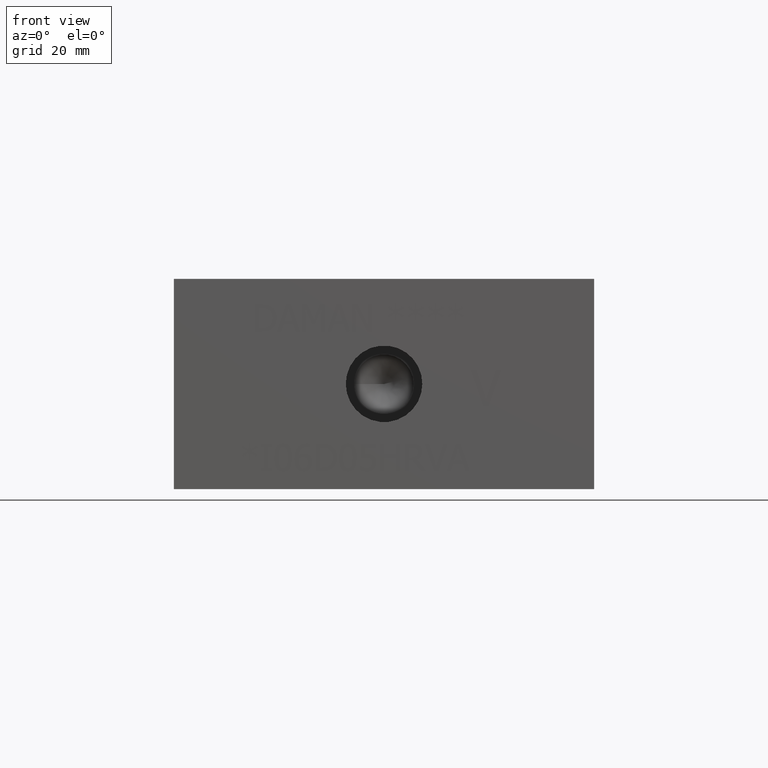
[diagram: clean part render]
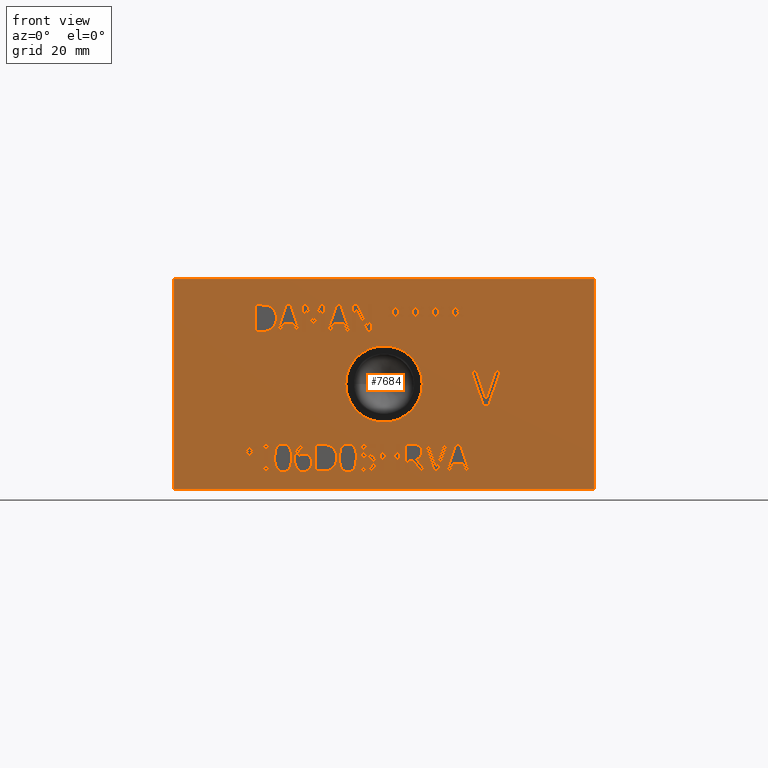
[diagram: same view with one face highlighted and labeled with its STEP entity id]
A machine part, front view. The second image highlights one B-rep face of the part: STEP entity #7684.
In plain terms, the highlighted planar face has unit normal (0, -1, 0).
Its self-contained STEP definition (entity closure, byte-faithful):
#42=B_SPLINE_CURVE_WITH_KNOTS('',2,(#10622,#10623,#10624,#10625),
 .UNSPECIFIED.,.F.,.F.,(3,1,3),(0.,1.,2.),.UNSPECIFIED.);
#44=B_SPLINE_CURVE_WITH_KNOTS('',2,(#10643,#10644,#10645,#10646),
 .UNSPECIFIED.,.F.,.F.,(3,1,3),(0.,1.,2.),.UNSPECIFIED.);
#46=B_SPLINE_CURVE_WITH_KNOTS('',2,(#10662,#10663,#10664,#10665),
 .UNSPECIFIED.,.F.,.F.,(3,1,3),(0.,1.,2.),.UNSPECIFIED.);
#48=B_SPLINE_CURVE_WITH_KNOTS('',2,(#10680,#10681,#10682,#10683),
 .UNSPECIFIED.,.F.,.F.,(3,1,3),(0.,1.,2.),.UNSPECIFIED.);
#64=B_SPLINE_CURVE_WITH_KNOTS('',2,(#10832,#10833,#10834,#10835),
 .UNSPECIFIED.,.F.,.F.,(3,1,3),(0.,1.,2.),.UNSPECIFIED.);
#66=B_SPLINE_CURVE_WITH_KNOTS('',2,(#10853,#10854,#10855,#10856),
 .UNSPECIFIED.,.F.,.F.,(3,1,3),(0.,1.,2.),.UNSPECIFIED.);
#68=B_SPLINE_CURVE_WITH_KNOTS('',2,(#10872,#10873,#10874,#10875),
 .UNSPECIFIED.,.F.,.F.,(3,1,3),(0.,1.,2.),.UNSPECIFIED.);
#70=B_SPLINE_CURVE_WITH_KNOTS('',2,(#10891,#10892,#10893,#10894),
 .UNSPECIFIED.,.F.,.F.,(3,1,3),(0.,1.,2.),.UNSPECIFIED.);
#72=B_SPLINE_CURVE_WITH_KNOTS('',2,(#10910,#10911,#10912,#10913),
 .UNSPECIFIED.,.F.,.F.,(3,1,3),(0.,1.,2.),.UNSPECIFIED.);
#74=B_SPLINE_CURVE_WITH_KNOTS('',2,(#10941,#10942,#10943,#10944),
 .UNSPECIFIED.,.F.,.F.,(3,1,3),(0.,1.,2.),.UNSPECIFIED.);
#76=B_SPLINE_CURVE_WITH_KNOTS('',2,(#10960,#10961,#10962,#10963),
 .UNSPECIFIED.,.F.,.F.,(3,1,3),(0.,1.,2.),.UNSPECIFIED.);
#78=B_SPLINE_CURVE_WITH_KNOTS('',2,(#10979,#10980,#10981,#10982),
 .UNSPECIFIED.,.F.,.F.,(3,1,3),(0.,1.,2.),.UNSPECIFIED.);
#80=B_SPLINE_CURVE_WITH_KNOTS('',2,(#10998,#10999,#11000,#11001),
 .UNSPECIFIED.,.F.,.F.,(3,1,3),(0.,1.,2.),.UNSPECIFIED.);
#82=B_SPLINE_CURVE_WITH_KNOTS('',2,(#11017,#11018,#11019,#11020),
 .UNSPECIFIED.,.F.,.F.,(3,1,3),(0.,1.,2.),.UNSPECIFIED.);
#84=B_SPLINE_CURVE_WITH_KNOTS('',2,(#11036,#11037,#11038,#11039),
 .UNSPECIFIED.,.F.,.F.,(3,1,3),(0.,1.,2.),.UNSPECIFIED.);
#86=B_SPLINE_CURVE_WITH_KNOTS('',2,(#11054,#11055,#11056,#11057),
 .UNSPECIFIED.,.F.,.F.,(3,1,3),(0.,1.,2.),.UNSPECIFIED.);
#96=B_SPLINE_CURVE_WITH_KNOTS('',2,(#11167,#11168,#11169,#11170),
 .UNSPECIFIED.,.F.,.F.,(3,1,3),(0.,1.,2.),.UNSPECIFIED.);
#98=B_SPLINE_CURVE_WITH_KNOTS('',2,(#11188,#11189,#11190,#11191),
 .UNSPECIFIED.,.F.,.F.,(3,1,3),(0.,1.,2.),.UNSPECIFIED.);
#100=B_SPLINE_CURVE_WITH_KNOTS('',2,(#11225,#11226,#11227,#11228),
 .UNSPECIFIED.,.F.,.F.,(3,1,3),(0.,1.,2.),.UNSPECIFIED.);
#102=B_SPLINE_CURVE_WITH_KNOTS('',2,(#11243,#11244,#11245,#11246),
 .UNSPECIFIED.,.F.,.F.,(3,1,3),(0.,1.,2.),.UNSPECIFIED.);
#120=B_SPLINE_CURVE_WITH_KNOTS('',2,(#11414,#11415,#11416,#11417),
 .UNSPECIFIED.,.F.,.F.,(3,1,3),(0.,1.,2.),.UNSPECIFIED.);
#122=B_SPLINE_CURVE_WITH_KNOTS('',2,(#11435,#11436,#11437,#11438),
 .UNSPECIFIED.,.F.,.F.,(3,1,3),(0.,1.,2.),.UNSPECIFIED.);
#124=B_SPLINE_CURVE_WITH_KNOTS('',2,(#11454,#11455,#11456,#11457),
 .UNSPECIFIED.,.F.,.F.,(3,1,3),(0.,1.,2.),.UNSPECIFIED.);
#126=B_SPLINE_CURVE_WITH_KNOTS('',2,(#11472,#11473,#11474,#11475),
 .UNSPECIFIED.,.F.,.F.,(3,1,3),(0.,1.,2.),.UNSPECIFIED.);
#128=B_SPLINE_CURVE_WITH_KNOTS('',2,(#11491,#11492,#11493,#11494),
 .UNSPECIFIED.,.F.,.F.,(3,1,3),(0.,1.,2.),.UNSPECIFIED.);
#130=B_SPLINE_CURVE_WITH_KNOTS('',2,(#11512,#11513,#11514,#11515),
 .UNSPECIFIED.,.F.,.F.,(3,1,3),(0.,1.,2.),.UNSPECIFIED.);
#132=B_SPLINE_CURVE_WITH_KNOTS('',2,(#11531,#11532,#11533,#11534),
 .UNSPECIFIED.,.F.,.F.,(3,1,3),(0.,1.,2.),.UNSPECIFIED.);
#134=B_SPLINE_CURVE_WITH_KNOTS('',2,(#11580,#11581,#11582,#11583),
 .UNSPECIFIED.,.F.,.F.,(3,1,3),(0.,1.,2.),.UNSPECIFIED.);
#136=B_SPLINE_CURVE_WITH_KNOTS('',2,(#11599,#11600,#11601,#11602),
 .UNSPECIFIED.,.F.,.F.,(3,1,3),(0.,1.,2.),.UNSPECIFIED.);
#138=B_SPLINE_CURVE_WITH_KNOTS('',2,(#11618,#11619,#11620,#11621),
 .UNSPECIFIED.,.F.,.F.,(3,1,3),(0.,1.,2.),.UNSPECIFIED.);
#140=B_SPLINE_CURVE_WITH_KNOTS('',2,(#11637,#11638,#11639,#11640),
 .UNSPECIFIED.,.F.,.F.,(3,1,3),(0.,1.,2.),.UNSPECIFIED.);
#142=B_SPLINE_CURVE_WITH_KNOTS('',2,(#11656,#11657,#11658,#11659),
 .UNSPECIFIED.,.F.,.F.,(3,1,3),(0.,1.,2.),.UNSPECIFIED.);
#144=B_SPLINE_CURVE_WITH_KNOTS('',2,(#11675,#11676,#11677,#11678),
 .UNSPECIFIED.,.F.,.F.,(3,1,3),(0.,1.,2.),.UNSPECIFIED.);
#146=B_SPLINE_CURVE_WITH_KNOTS('',2,(#11694,#11695,#11696,#11697),
 .UNSPECIFIED.,.F.,.F.,(3,1,3),(0.,1.,2.),.UNSPECIFIED.);
#148=B_SPLINE_CURVE_WITH_KNOTS('',2,(#11725,#11726,#11727,#11728),
 .UNSPECIFIED.,.F.,.F.,(3,1,3),(0.,1.,2.),.UNSPECIFIED.);
#150=B_SPLINE_CURVE_WITH_KNOTS('',2,(#11744,#11745,#11746,#11747),
 .UNSPECIFIED.,.F.,.F.,(3,1,3),(0.,1.,2.),.UNSPECIFIED.);
#152=B_SPLINE_CURVE_WITH_KNOTS('',2,(#11762,#11763,#11764,#11765),
 .UNSPECIFIED.,.F.,.F.,(3,1,3),(0.,1.,2.),.UNSPECIFIED.);
#162=B_SPLINE_CURVE_WITH_KNOTS('',2,(#11883,#11884,#11885,#11886),
 .UNSPECIFIED.,.F.,.F.,(3,1,3),(0.,1.,2.),.UNSPECIFIED.);
#164=B_SPLINE_CURVE_WITH_KNOTS('',2,(#11902,#11903,#11904,#11905),
 .UNSPECIFIED.,.F.,.F.,(3,1,3),(0.,1.,2.),.UNSPECIFIED.);
#166=B_SPLINE_CURVE_WITH_KNOTS('',2,(#11921,#11922,#11923,#11924),
 .UNSPECIFIED.,.F.,.F.,(3,1,3),(0.,1.,2.),.UNSPECIFIED.);
#168=B_SPLINE_CURVE_WITH_KNOTS('',2,(#12148,#12149,#12150,#12151),
 .UNSPECIFIED.,.F.,.F.,(3,1,3),(0.,1.,2.),.UNSPECIFIED.);
#169=B_SPLINE_CURVE_WITH_KNOTS('',2,(#12153,#12154,#12155,#12156),
 .UNSPECIFIED.,.F.,.F.,(3,1,3),(0.,1.,2.),.UNSPECIFIED.);
#170=B_SPLINE_CURVE_WITH_KNOTS('',2,(#12158,#12159,#12160,#12161),
 .UNSPECIFIED.,.F.,.F.,(3,1,3),(0.,1.,2.),.UNSPECIFIED.);
#171=B_SPLINE_CURVE_WITH_KNOTS('',2,(#12168,#12169,#12170,#12171),
 .UNSPECIFIED.,.F.,.F.,(3,1,3),(0.,1.,2.),.UNSPECIFIED.);
#598=FACE_BOUND('',#1402,.T.);
#599=FACE_BOUND('',#1403,.T.);
#600=FACE_BOUND('',#1404,.T.);
#601=FACE_BOUND('',#1405,.T.);
#602=FACE_BOUND('',#1406,.T.);
#603=FACE_BOUND('',#1407,.T.);
#604=FACE_BOUND('',#1408,.T.);
#605=FACE_BOUND('',#1409,.T.);
#606=FACE_BOUND('',#1410,.T.);
#607=FACE_BOUND('',#1411,.T.);
#608=FACE_BOUND('',#1412,.T.);
#609=FACE_BOUND('',#1413,.T.);
#610=FACE_BOUND('',#1414,.T.);
#611=FACE_BOUND('',#1415,.T.);
#612=FACE_BOUND('',#1416,.T.);
#613=FACE_BOUND('',#1417,.T.);
#614=FACE_BOUND('',#1418,.T.);
#615=FACE_BOUND('',#1419,.T.);
#616=FACE_BOUND('',#1420,.T.);
#617=FACE_BOUND('',#1421,.T.);
#618=FACE_BOUND('',#1422,.T.);
#619=FACE_BOUND('',#1423,.T.);
#673=CIRCLE('',#8054,6.9342);
#674=CIRCLE('',#8055,6.9342);
#983=FACE_OUTER_BOUND('',#1401,.T.);
#1401=EDGE_LOOP('',(#5915,#5916,#5917,#5918));
#1402=EDGE_LOOP('',(#5919,#5920,#5921,#5922,#5923,#5924,#5925,#5926));
#1403=EDGE_LOOP('',(#5927,#5928,#5929,#5930,#5931,#5932,#5933,#5934,#5935,
#5936,#5937,#5938));
#1404=EDGE_LOOP('',(#5939,#5940,#5941,#5942,#5943,#5944,#5945,#5946,#5947,
#5948,#5949,#5950));
#1405=EDGE_LOOP('',(#5951,#5952,#5953,#5954,#5955,#5956,#5957,#5958,#5959,
#5960,#5961,#5962,#5963,#5964,#5965,#5966,#5967,#5968));
#1406=EDGE_LOOP('',(#5969,#5970,#5971,#5972));
#1407=EDGE_LOOP('',(#5973,#5974,#5975,#5976,#5977,#5978,#5979,#5980,#5981,
#5982,#5983,#5984,#5985,#5986));
#1408=EDGE_LOOP('',(#5987,#5988,#5989,#5990,#5991,#5992,#5993));
#1409=EDGE_LOOP('',(#5994,#5995,#5996,#5997));
#1410=EDGE_LOOP('',(#5998,#5999,#6000,#6001,#6002,#6003,#6004,#6005,#6006,
#6007,#6008,#6009,#6010,#6011,#6012,#6013,#6014,#6015,#6016,#6017));
#1411=EDGE_LOOP('',(#6018,#6019,#6020,#6021,#6022,#6023,#6024,#6025,#6026,
#6027,#6028));
#1412=EDGE_LOOP('',(#6029,#6030,#6031,#6032,#6033,#6034,#6035));
#1413=EDGE_LOOP('',(#6036,#6037));
#1414=EDGE_LOOP('',(#6038,#6039,#6040,#6041,#6042,#6043,#6044));
#1415=EDGE_LOOP('',(#6045,#6046,#6047,#6048,#6049,#6050,#6051,#6052,#6053,
#6054,#6055,#6056,#6057,#6058,#6059,#6060,#6061,#6062));
#1416=EDGE_LOOP('',(#6063,#6064,#6065,#6066,#6067,#6068,#6069,#6070,#6071,
#6072,#6073,#6074,#6075,#6076,#6077,#6078,#6079,#6080));
#1417=EDGE_LOOP('',(#6081,#6082,#6083,#6084,#6085,#6086,#6087,#6088,#6089,
#6090));
#1418=EDGE_LOOP('',(#6091,#6092,#6093,#6094,#6095,#6096,#6097,#6098));
#1419=EDGE_LOOP('',(#6099,#6100,#6101,#6102,#6103,#6104,#6105));
#1420=EDGE_LOOP('',(#6106,#6107,#6108,#6109,#6110,#6111,#6112,#6113));
#1421=EDGE_LOOP('',(#6114,#6115,#6116,#6117,#6118,#6119,#6120,#6121,#6122,
#6123,#6124,#6125,#6126));
#1422=EDGE_LOOP('',(#6127,#6128,#6129,#6130,#6131,#6132,#6133,#6134,#6135,
#6136,#6137,#6138,#6139,#6140,#6141,#6142,#6143,#6144));
#1423=EDGE_LOOP('',(#6145,#6146,#6147,#6148,#6149,#6150,#6151,#6152,#6153,
#6154,#6155,#6156,#6157,#6158,#6159,#6160,#6161,#6162));
#1682=LINE('',#10079,#2477);
#1698=LINE('',#10159,#2493);
#1702=LINE('',#10167,#2497);
#1705=LINE('',#10173,#2500);
#1708=LINE('',#10179,#2503);
#1711=LINE('',#10185,#2506);
#1714=LINE('',#10191,#2509);
#1717=LINE('',#10197,#2512);
#1720=LINE('',#10202,#2515);
#1722=LINE('',#10208,#2517);
#1726=LINE('',#10216,#2521);
#1729=LINE('',#10222,#2524);
#1732=LINE('',#10228,#2527);
#1735=LINE('',#10234,#2530);
#1738=LINE('',#10240,#2533);
#1741=LINE('',#10246,#2536);
#1744=LINE('',#10252,#2539);
#1747=LINE('',#10258,#2542);
#1750=LINE('',#10264,#2545);
#1753=LINE('',#10270,#2548);
#1756=LINE('',#10275,#2551);
#1758=LINE('',#10281,#2553);
#1762=LINE('',#10289,#2557);
#1765=LINE('',#10295,#2560);
#1768=LINE('',#10301,#2563);
#1771=LINE('',#10307,#2566);
#1774=LINE('',#10313,#2569);
#1777=LINE('',#10319,#2572);
#1780=LINE('',#10325,#2575);
#1783=LINE('',#10331,#2578);
#1786=LINE('',#10337,#2581);
#1789=LINE('',#10343,#2584);
#1792=LINE('',#10348,#2587);
#1794=LINE('',#10354,#2589);
#1798=LINE('',#10362,#2593);
#1801=LINE('',#10368,#2596);
#1804=LINE('',#10374,#2599);
#1807=LINE('',#10380,#2602);
#1810=LINE('',#10386,#2605);
#1813=LINE('',#10392,#2608);
#1816=LINE('',#10398,#2611);
#1819=LINE('',#10404,#2614);
#1822=LINE('',#10410,#2617);
#1825=LINE('',#10416,#2620);
#1828=LINE('',#10422,#2623);
#1831=LINE('',#10428,#2626);
#1834=LINE('',#10434,#2629);
#1837=LINE('',#10440,#2632);
#1840=LINE('',#10446,#2635);
#1843=LINE('',#10452,#2638);
#1846=LINE('',#10457,#2641);
#1873=LINE('',#10922,#2668);
#1876=LINE('',#10928,#2671);
#1901=LINE('',#11200,#2696);
#1904=LINE('',#11206,#2699);
#1907=LINE('',#11212,#2702);
#1927=LINE('',#11543,#2722);
#1930=LINE('',#11549,#2725);
#1933=LINE('',#11555,#2728);
#1936=LINE('',#11561,#2731);
#1939=LINE('',#11567,#2734);
#1949=LINE('',#11706,#2744);
#1952=LINE('',#11712,#2747);
#1970=LINE('',#11868,#2765);
#1977=LINE('',#11933,#2772);
#1980=LINE('',#11939,#2775);
#1983=LINE('',#11945,#2778);
#1986=LINE('',#11951,#2781);
#1989=LINE('',#11957,#2784);
#1992=LINE('',#11963,#2787);
#1995=LINE('',#11968,#2790);
#1997=LINE('',#11974,#2792);
#2001=LINE('',#11982,#2796);
#2004=LINE('',#11988,#2799);
#2007=LINE('',#11994,#2802);
#2010=LINE('',#12000,#2805);
#2013=LINE('',#12006,#2808);
#2016=LINE('',#12011,#2811);
#2018=LINE('',#12016,#2813);
#2019=LINE('',#12018,#2814);
#2020=LINE('',#12019,#2815);
#2021=LINE('',#12026,#2816);
#2022=LINE('',#12028,#2817);
#2023=LINE('',#12030,#2818);
#2024=LINE('',#12032,#2819);
#2025=LINE('',#12034,#2820);
#2026=LINE('',#12036,#2821);
#2027=LINE('',#12037,#2822);
#2028=LINE('',#12040,#2823);
#2029=LINE('',#12042,#2824);
#2030=LINE('',#12044,#2825);
#2031=LINE('',#12046,#2826);
#2032=LINE('',#12048,#2827);
#2033=LINE('',#12050,#2828);
#2034=LINE('',#12052,#2829);
#2035=LINE('',#12054,#2830);
#2036=LINE('',#12056,#2831);
#2037=LINE('',#12058,#2832);
#2038=LINE('',#12060,#2833);
#2039=LINE('',#12062,#2834);
#2040=LINE('',#12064,#2835);
#2041=LINE('',#12066,#2836);
#2042=LINE('',#12068,#2837);
#2043=LINE('',#12070,#2838);
#2044=LINE('',#12072,#2839);
#2045=LINE('',#12073,#2840);
#2046=LINE('',#12076,#2841);
#2047=LINE('',#12078,#2842);
#2048=LINE('',#12080,#2843);
#2049=LINE('',#12082,#2844);
#2050=LINE('',#12084,#2845);
#2051=LINE('',#12086,#2846);
#2052=LINE('',#12088,#2847);
#2053=LINE('',#12090,#2848);
#2054=LINE('',#12092,#2849);
#2055=LINE('',#12094,#2850);
#2056=LINE('',#12096,#2851);
#2057=LINE('',#12098,#2852);
#2058=LINE('',#12100,#2853);
#2059=LINE('',#12102,#2854);
#2060=LINE('',#12104,#2855);
#2061=LINE('',#12106,#2856);
#2062=LINE('',#12108,#2857);
#2063=LINE('',#12109,#2858);
#2064=LINE('',#12112,#2859);
#2065=LINE('',#12114,#2860);
#2066=LINE('',#12116,#2861);
#2067=LINE('',#12118,#2862);
#2068=LINE('',#12120,#2863);
#2069=LINE('',#12122,#2864);
#2070=LINE('',#12124,#2865);
#2071=LINE('',#12126,#2866);
#2072=LINE('',#12128,#2867);
#2073=LINE('',#12129,#2868);
#2074=LINE('',#12132,#2869);
#2075=LINE('',#12134,#2870);
#2076=LINE('',#12136,#2871);
#2077=LINE('',#12138,#2872);
#2078=LINE('',#12140,#2873);
#2079=LINE('',#12142,#2874);
#2080=LINE('',#12144,#2875);
#2081=LINE('',#12145,#2876);
#2082=LINE('',#12163,#2877);
#2083=LINE('',#12165,#2878);
#2084=LINE('',#12167,#2879);
#2085=LINE('',#12174,#2880);
#2086=LINE('',#12176,#2881);
#2087=LINE('',#12178,#2882);
#2088=LINE('',#12180,#2883);
#2089=LINE('',#12182,#2884);
#2090=LINE('',#12184,#2885);
#2091=LINE('',#12186,#2886);
#2092=LINE('',#12187,#2887);
#2093=LINE('',#12190,#2888);
#2094=LINE('',#12192,#2889);
#2095=LINE('',#12194,#2890);
#2096=LINE('',#12196,#2891);
#2097=LINE('',#12198,#2892);
#2098=LINE('',#12200,#2893);
#2099=LINE('',#12202,#2894);
#2100=LINE('',#12204,#2895);
#2101=LINE('',#12206,#2896);
#2102=LINE('',#12208,#2897);
#2103=LINE('',#12210,#2898);
#2104=LINE('',#12212,#2899);
#2105=LINE('',#12213,#2900);
#2106=LINE('',#12216,#2901);
#2107=LINE('',#12218,#2902);
#2108=LINE('',#12220,#2903);
#2109=LINE('',#12222,#2904);
#2110=LINE('',#12224,#2905);
#2111=LINE('',#12226,#2906);
#2112=LINE('',#12228,#2907);
#2113=LINE('',#12230,#2908);
#2114=LINE('',#12232,#2909);
#2115=LINE('',#12234,#2910);
#2116=LINE('',#12236,#2911);
#2117=LINE('',#12238,#2912);
#2118=LINE('',#12240,#2913);
#2119=LINE('',#12242,#2914);
#2120=LINE('',#12244,#2915);
#2121=LINE('',#12246,#2916);
#2122=LINE('',#12248,#2917);
#2123=LINE('',#12249,#2918);
#2124=LINE('',#12252,#2919);
#2125=LINE('',#12254,#2920);
#2126=LINE('',#12256,#2921);
#2127=LINE('',#12258,#2922);
#2128=LINE('',#12260,#2923);
#2129=LINE('',#12262,#2924);
#2130=LINE('',#12264,#2925);
#2131=LINE('',#12266,#2926);
#2132=LINE('',#12268,#2927);
#2133=LINE('',#12270,#2928);
#2134=LINE('',#12272,#2929);
#2135=LINE('',#12274,#2930);
#2136=LINE('',#12276,#2931);
#2137=LINE('',#12278,#2932);
#2138=LINE('',#12280,#2933);
#2139=LINE('',#12282,#2934);
#2140=LINE('',#12284,#2935);
#2141=LINE('',#12285,#2936);
#2477=VECTOR('',#8388,10.);
#2493=VECTOR('',#8464,10.);
#2497=VECTOR('',#8470,10.);
#2500=VECTOR('',#8475,10.);
#2503=VECTOR('',#8480,10.);
#2506=VECTOR('',#8485,10.);
#2509=VECTOR('',#8490,10.);
#2512=VECTOR('',#8495,10.);
#2515=VECTOR('',#8500,10.);
#2517=VECTOR('',#8506,10.);
#2521=VECTOR('',#8512,10.);
#2524=VECTOR('',#8517,10.);
#2527=VECTOR('',#8522,10.);
#2530=VECTOR('',#8527,10.);
#2533=VECTOR('',#8532,10.);
#2536=VECTOR('',#8537,10.);
#2539=VECTOR('',#8542,10.);
#2542=VECTOR('',#8547,10.);
#2545=VECTOR('',#8552,10.);
#2548=VECTOR('',#8557,10.);
#2551=VECTOR('',#8562,10.);
#2553=VECTOR('',#8568,10.);
#2557=VECTOR('',#8574,10.);
#2560=VECTOR('',#8579,10.);
#2563=VECTOR('',#8584,10.);
#2566=VECTOR('',#8589,10.);
#2569=VECTOR('',#8594,10.);
#2572=VECTOR('',#8599,10.);
#2575=VECTOR('',#8604,10.);
#2578=VECTOR('',#8609,10.);
#2581=VECTOR('',#8614,10.);
#2584=VECTOR('',#8619,10.);
#2587=VECTOR('',#8624,10.);
#2589=VECTOR('',#8630,10.);
#2593=VECTOR('',#8636,10.);
#2596=VECTOR('',#8641,10.);
#2599=VECTOR('',#8646,10.);
#2602=VECTOR('',#8651,10.);
#2605=VECTOR('',#8656,10.);
#2608=VECTOR('',#8661,10.);
#2611=VECTOR('',#8666,10.);
#2614=VECTOR('',#8671,10.);
#2617=VECTOR('',#8676,10.);
#2620=VECTOR('',#8681,10.);
#2623=VECTOR('',#8686,10.);
#2626=VECTOR('',#8691,10.);
#2629=VECTOR('',#8696,10.);
#2632=VECTOR('',#8701,10.);
#2635=VECTOR('',#8706,10.);
#2638=VECTOR('',#8711,10.);
#2641=VECTOR('',#8716,10.);
#2668=VECTOR('',#8749,10.);
#2671=VECTOR('',#8754,10.);
#2696=VECTOR('',#8789,10.);
#2699=VECTOR('',#8794,10.);
#2702=VECTOR('',#8799,10.);
#2722=VECTOR('',#8825,10.);
#2725=VECTOR('',#8830,10.);
#2728=VECTOR('',#8835,10.);
#2731=VECTOR('',#8840,10.);
#2734=VECTOR('',#8845,10.);
#2744=VECTOR('',#8857,10.);
#2747=VECTOR('',#8862,10.);
#2765=VECTOR('',#8890,10.);
#2772=VECTOR('',#8899,10.);
#2775=VECTOR('',#8904,10.);
#2778=VECTOR('',#8909,10.);
#2781=VECTOR('',#8914,10.);
#2784=VECTOR('',#8919,10.);
#2787=VECTOR('',#8924,10.);
#2790=VECTOR('',#8929,10.);
#2792=VECTOR('',#8935,10.);
#2796=VECTOR('',#8941,10.);
#2799=VECTOR('',#8946,10.);
#2802=VECTOR('',#8951,10.);
#2805=VECTOR('',#8956,10.);
#2808=VECTOR('',#8961,10.);
#2811=VECTOR('',#8966,10.);
#2813=VECTOR('',#8972,10.);
#2814=VECTOR('',#8973,10.);
#2815=VECTOR('',#8974,10.);
#2816=VECTOR('',#8979,10.);
#2817=VECTOR('',#8980,10.);
#2818=VECTOR('',#8981,10.);
#2819=VECTOR('',#8982,10.);
#2820=VECTOR('',#8983,10.);
#2821=VECTOR('',#8984,10.);
#2822=VECTOR('',#8985,10.);
#2823=VECTOR('',#8986,10.);
#2824=VECTOR('',#8987,10.);
#2825=VECTOR('',#8988,10.);
#2826=VECTOR('',#8989,10.);
#2827=VECTOR('',#8990,10.);
#2828=VECTOR('',#8991,10.);
#2829=VECTOR('',#8992,10.);
#2830=VECTOR('',#8993,10.);
#2831=VECTOR('',#8994,10.);
#2832=VECTOR('',#8995,10.);
#2833=VECTOR('',#8996,10.);
#2834=VECTOR('',#8997,10.);
#2835=VECTOR('',#8998,10.);
#2836=VECTOR('',#8999,10.);
#2837=VECTOR('',#9000,10.);
#2838=VECTOR('',#9001,10.);
#2839=VECTOR('',#9002,10.);
#2840=VECTOR('',#9003,10.);
#2841=VECTOR('',#9004,10.);
#2842=VECTOR('',#9005,10.);
#2843=VECTOR('',#9006,10.);
#2844=VECTOR('',#9007,10.);
#2845=VECTOR('',#9008,10.);
#2846=VECTOR('',#9009,10.);
#2847=VECTOR('',#9010,10.);
#2848=VECTOR('',#9011,10.);
#2849=VECTOR('',#9012,10.);
#2850=VECTOR('',#9013,10.);
#2851=VECTOR('',#9014,10.);
#2852=VECTOR('',#9015,10.);
#2853=VECTOR('',#9016,10.);
#2854=VECTOR('',#9017,10.);
#2855=VECTOR('',#9018,10.);
#2856=VECTOR('',#9019,10.);
#2857=VECTOR('',#9020,10.);
#2858=VECTOR('',#9021,10.);
#2859=VECTOR('',#9022,10.);
#2860=VECTOR('',#9023,10.);
#2861=VECTOR('',#9024,10.);
#2862=VECTOR('',#9025,10.);
#2863=VECTOR('',#9026,10.);
#2864=VECTOR('',#9027,10.);
#2865=VECTOR('',#9028,10.);
#2866=VECTOR('',#9029,10.);
#2867=VECTOR('',#9030,10.);
#2868=VECTOR('',#9031,10.);
#2869=VECTOR('',#9032,10.);
#2870=VECTOR('',#9033,10.);
#2871=VECTOR('',#9034,10.);
#2872=VECTOR('',#9035,10.);
#2873=VECTOR('',#9036,10.);
#2874=VECTOR('',#9037,10.);
#2875=VECTOR('',#9038,10.);
#2876=VECTOR('',#9039,10.);
#2877=VECTOR('',#9040,10.);
#2878=VECTOR('',#9041,10.);
#2879=VECTOR('',#9042,10.);
#2880=VECTOR('',#9043,10.);
#2881=VECTOR('',#9044,10.);
#2882=VECTOR('',#9045,10.);
#2883=VECTOR('',#9046,10.);
#2884=VECTOR('',#9047,10.);
#2885=VECTOR('',#9048,10.);
#2886=VECTOR('',#9049,10.);
#2887=VECTOR('',#9050,10.);
#2888=VECTOR('',#9051,10.);
#2889=VECTOR('',#9052,10.);
#2890=VECTOR('',#9053,10.);
#2891=VECTOR('',#9054,10.);
#2892=VECTOR('',#9055,10.);
#2893=VECTOR('',#9056,10.);
#2894=VECTOR('',#9057,10.);
#2895=VECTOR('',#9058,10.);
#2896=VECTOR('',#9059,10.);
#2897=VECTOR('',#9060,10.);
#2898=VECTOR('',#9061,10.);
#2899=VECTOR('',#9062,10.);
#2900=VECTOR('',#9063,10.);
#2901=VECTOR('',#9064,10.);
#2902=VECTOR('',#9065,10.);
#2903=VECTOR('',#9066,10.);
#2904=VECTOR('',#9067,10.);
#2905=VECTOR('',#9068,10.);
#2906=VECTOR('',#9069,10.);
#2907=VECTOR('',#9070,10.);
#2908=VECTOR('',#9071,10.);
#2909=VECTOR('',#9072,10.);
#2910=VECTOR('',#9073,10.);
#2911=VECTOR('',#9074,10.);
#2912=VECTOR('',#9075,10.);
#2913=VECTOR('',#9076,10.);
#2914=VECTOR('',#9077,10.);
#2915=VECTOR('',#9078,10.);
#2916=VECTOR('',#9079,10.);
#2917=VECTOR('',#9080,10.);
#2918=VECTOR('',#9081,10.);
#2919=VECTOR('',#9082,10.);
#2920=VECTOR('',#9083,10.);
#2921=VECTOR('',#9084,10.);
#2922=VECTOR('',#9085,10.);
#2923=VECTOR('',#9086,10.);
#2924=VECTOR('',#9087,10.);
#2925=VECTOR('',#9088,10.);
#2926=VECTOR('',#9089,10.);
#2927=VECTOR('',#9090,10.);
#2928=VECTOR('',#9091,10.);
#2929=VECTOR('',#9092,10.);
#2930=VECTOR('',#9093,10.);
#2931=VECTOR('',#9094,10.);
#2932=VECTOR('',#9095,10.);
#2933=VECTOR('',#9096,10.);
#2934=VECTOR('',#9097,10.);
#2935=VECTOR('',#9098,10.);
#2936=VECTOR('',#9099,10.);
#3273=VERTEX_POINT('',#10077);
#3274=VERTEX_POINT('',#10078);
#3307=VERTEX_POINT('',#10157);
#3308=VERTEX_POINT('',#10158);
#3311=VERTEX_POINT('',#10166);
#3313=VERTEX_POINT('',#10172);
#3315=VERTEX_POINT('',#10178);
#3317=VERTEX_POINT('',#10184);
#3319=VERTEX_POINT('',#10190);
#3321=VERTEX_POINT('',#10196);
#3323=VERTEX_POINT('',#10206);
#3324=VERTEX_POINT('',#10207);
#3327=VERTEX_POINT('',#10215);
#3329=VERTEX_POINT('',#10221);
#3331=VERTEX_POINT('',#10227);
#3333=VERTEX_POINT('',#10233);
#3335=VERTEX_POINT('',#10239);
#3337=VERTEX_POINT('',#10245);
#3339=VERTEX_POINT('',#10251);
#3341=VERTEX_POINT('',#10257);
#3343=VERTEX_POINT('',#10263);
#3345=VERTEX_POINT('',#10269);
#3347=VERTEX_POINT('',#10279);
#3348=VERTEX_POINT('',#10280);
#3351=VERTEX_POINT('',#10288);
#3353=VERTEX_POINT('',#10294);
#3355=VERTEX_POINT('',#10300);
#3357=VERTEX_POINT('',#10306);
#3359=VERTEX_POINT('',#10312);
#3361=VERTEX_POINT('',#10318);
#3363=VERTEX_POINT('',#10324);
#3365=VERTEX_POINT('',#10330);
#3367=VERTEX_POINT('',#10336);
#3369=VERTEX_POINT('',#10342);
#3371=VERTEX_POINT('',#10352);
#3372=VERTEX_POINT('',#10353);
#3375=VERTEX_POINT('',#10361);
#3377=VERTEX_POINT('',#10367);
#3379=VERTEX_POINT('',#10373);
#3381=VERTEX_POINT('',#10379);
#3383=VERTEX_POINT('',#10385);
#3385=VERTEX_POINT('',#10391);
#3387=VERTEX_POINT('',#10397);
#3389=VERTEX_POINT('',#10403);
#3391=VERTEX_POINT('',#10409);
#3393=VERTEX_POINT('',#10415);
#3395=VERTEX_POINT('',#10421);
#3397=VERTEX_POINT('',#10427);
#3399=VERTEX_POINT('',#10433);
#3401=VERTEX_POINT('',#10439);
#3403=VERTEX_POINT('',#10445);
#3405=VERTEX_POINT('',#10451);
#3423=VERTEX_POINT('',#10620);
#3424=VERTEX_POINT('',#10621);
#3427=VERTEX_POINT('',#10642);
#3429=VERTEX_POINT('',#10661);
#3445=VERTEX_POINT('',#10830);
#3446=VERTEX_POINT('',#10831);
#3449=VERTEX_POINT('',#10852);
#3451=VERTEX_POINT('',#10871);
#3453=VERTEX_POINT('',#10890);
#3455=VERTEX_POINT('',#10909);
#3457=VERTEX_POINT('',#10921);
#3459=VERTEX_POINT('',#10927);
#3461=VERTEX_POINT('',#10940);
#3463=VERTEX_POINT('',#10959);
#3465=VERTEX_POINT('',#10978);
#3467=VERTEX_POINT('',#10997);
#3469=VERTEX_POINT('',#11016);
#3471=VERTEX_POINT('',#11035);
#3487=VERTEX_POINT('',#11165);
#3488=VERTEX_POINT('',#11166);
#3491=VERTEX_POINT('',#11187);
#3493=VERTEX_POINT('',#11199);
#3495=VERTEX_POINT('',#11205);
#3497=VERTEX_POINT('',#11211);
#3499=VERTEX_POINT('',#11224);
#3517=VERTEX_POINT('',#11412);
#3518=VERTEX_POINT('',#11413);
#3521=VERTEX_POINT('',#11434);
#3523=VERTEX_POINT('',#11453);
#3525=VERTEX_POINT('',#11489);
#3526=VERTEX_POINT('',#11490);
#3529=VERTEX_POINT('',#11511);
#3531=VERTEX_POINT('',#11530);
#3533=VERTEX_POINT('',#11542);
#3535=VERTEX_POINT('',#11548);
#3537=VERTEX_POINT('',#11554);
#3539=VERTEX_POINT('',#11560);
#3541=VERTEX_POINT('',#11566);
#3543=VERTEX_POINT('',#11579);
#3545=VERTEX_POINT('',#11598);
#3547=VERTEX_POINT('',#11617);
#3549=VERTEX_POINT('',#11636);
#3551=VERTEX_POINT('',#11655);
#3553=VERTEX_POINT('',#11674);
#3555=VERTEX_POINT('',#11693);
#3557=VERTEX_POINT('',#11705);
#3559=VERTEX_POINT('',#11711);
#3561=VERTEX_POINT('',#11724);
#3563=VERTEX_POINT('',#11743);
#3579=VERTEX_POINT('',#11866);
#3580=VERTEX_POINT('',#11867);
#3583=VERTEX_POINT('',#11882);
#3585=VERTEX_POINT('',#11901);
#3587=VERTEX_POINT('',#11920);
#3589=VERTEX_POINT('',#11932);
#3591=VERTEX_POINT('',#11938);
#3593=VERTEX_POINT('',#11944);
#3595=VERTEX_POINT('',#11950);
#3597=VERTEX_POINT('',#11956);
#3599=VERTEX_POINT('',#11962);
#3601=VERTEX_POINT('',#11972);
#3602=VERTEX_POINT('',#11973);
#3605=VERTEX_POINT('',#11981);
#3607=VERTEX_POINT('',#11987);
#3609=VERTEX_POINT('',#11993);
#3611=VERTEX_POINT('',#11999);
#3613=VERTEX_POINT('',#12005);
#3615=VERTEX_POINT('',#12015);
#3616=VERTEX_POINT('',#12017);
#3617=VERTEX_POINT('',#12020);
#3618=VERTEX_POINT('',#12021);
#3619=VERTEX_POINT('',#12024);
#3620=VERTEX_POINT('',#12025);
#3621=VERTEX_POINT('',#12027);
#3622=VERTEX_POINT('',#12029);
#3623=VERTEX_POINT('',#12031);
#3624=VERTEX_POINT('',#12033);
#3625=VERTEX_POINT('',#12035);
#3626=VERTEX_POINT('',#12038);
#3627=VERTEX_POINT('',#12039);
#3628=VERTEX_POINT('',#12041);
#3629=VERTEX_POINT('',#12043);
#3630=VERTEX_POINT('',#12045);
#3631=VERTEX_POINT('',#12047);
#3632=VERTEX_POINT('',#12049);
#3633=VERTEX_POINT('',#12051);
#3634=VERTEX_POINT('',#12053);
#3635=VERTEX_POINT('',#12055);
#3636=VERTEX_POINT('',#12057);
#3637=VERTEX_POINT('',#12059);
#3638=VERTEX_POINT('',#12061);
#3639=VERTEX_POINT('',#12063);
#3640=VERTEX_POINT('',#12065);
#3641=VERTEX_POINT('',#12067);
#3642=VERTEX_POINT('',#12069);
#3643=VERTEX_POINT('',#12071);
#3644=VERTEX_POINT('',#12074);
#3645=VERTEX_POINT('',#12075);
#3646=VERTEX_POINT('',#12077);
#3647=VERTEX_POINT('',#12079);
#3648=VERTEX_POINT('',#12081);
#3649=VERTEX_POINT('',#12083);
#3650=VERTEX_POINT('',#12085);
#3651=VERTEX_POINT('',#12087);
#3652=VERTEX_POINT('',#12089);
#3653=VERTEX_POINT('',#12091);
#3654=VERTEX_POINT('',#12093);
#3655=VERTEX_POINT('',#12095);
#3656=VERTEX_POINT('',#12097);
#3657=VERTEX_POINT('',#12099);
#3658=VERTEX_POINT('',#12101);
#3659=VERTEX_POINT('',#12103);
#3660=VERTEX_POINT('',#12105);
#3661=VERTEX_POINT('',#12107);
#3662=VERTEX_POINT('',#12110);
#3663=VERTEX_POINT('',#12111);
#3664=VERTEX_POINT('',#12113);
#3665=VERTEX_POINT('',#12115);
#3666=VERTEX_POINT('',#12117);
#3667=VERTEX_POINT('',#12119);
#3668=VERTEX_POINT('',#12121);
#3669=VERTEX_POINT('',#12123);
#3670=VERTEX_POINT('',#12125);
#3671=VERTEX_POINT('',#12127);
#3672=VERTEX_POINT('',#12130);
#3673=VERTEX_POINT('',#12131);
#3674=VERTEX_POINT('',#12133);
#3675=VERTEX_POINT('',#12135);
#3676=VERTEX_POINT('',#12137);
#3677=VERTEX_POINT('',#12139);
#3678=VERTEX_POINT('',#12141);
#3679=VERTEX_POINT('',#12143);
#3680=VERTEX_POINT('',#12146);
#3681=VERTEX_POINT('',#12147);
#3682=VERTEX_POINT('',#12152);
#3683=VERTEX_POINT('',#12157);
#3684=VERTEX_POINT('',#12162);
#3685=VERTEX_POINT('',#12164);
#3686=VERTEX_POINT('',#12166);
#3687=VERTEX_POINT('',#12172);
#3688=VERTEX_POINT('',#12173);
#3689=VERTEX_POINT('',#12175);
#3690=VERTEX_POINT('',#12177);
#3691=VERTEX_POINT('',#12179);
#3692=VERTEX_POINT('',#12181);
#3693=VERTEX_POINT('',#12183);
#3694=VERTEX_POINT('',#12185);
#3695=VERTEX_POINT('',#12188);
#3696=VERTEX_POINT('',#12189);
#3697=VERTEX_POINT('',#12191);
#3698=VERTEX_POINT('',#12193);
#3699=VERTEX_POINT('',#12195);
#3700=VERTEX_POINT('',#12197);
#3701=VERTEX_POINT('',#12199);
#3702=VERTEX_POINT('',#12201);
#3703=VERTEX_POINT('',#12203);
#3704=VERTEX_POINT('',#12205);
#3705=VERTEX_POINT('',#12207);
#3706=VERTEX_POINT('',#12209);
#3707=VERTEX_POINT('',#12211);
#3708=VERTEX_POINT('',#12214);
#3709=VERTEX_POINT('',#12215);
#3710=VERTEX_POINT('',#12217);
#3711=VERTEX_POINT('',#12219);
#3712=VERTEX_POINT('',#12221);
#3713=VERTEX_POINT('',#12223);
#3714=VERTEX_POINT('',#12225);
#3715=VERTEX_POINT('',#12227);
#3716=VERTEX_POINT('',#12229);
#3717=VERTEX_POINT('',#12231);
#3718=VERTEX_POINT('',#12233);
#3719=VERTEX_POINT('',#12235);
#3720=VERTEX_POINT('',#12237);
#3721=VERTEX_POINT('',#12239);
#3722=VERTEX_POINT('',#12241);
#3723=VERTEX_POINT('',#12243);
#3724=VERTEX_POINT('',#12245);
#3725=VERTEX_POINT('',#12247);
#3726=VERTEX_POINT('',#12250);
#3727=VERTEX_POINT('',#12251);
#3728=VERTEX_POINT('',#12253);
#3729=VERTEX_POINT('',#12255);
#3730=VERTEX_POINT('',#12257);
#3731=VERTEX_POINT('',#12259);
#3732=VERTEX_POINT('',#12261);
#3733=VERTEX_POINT('',#12263);
#3734=VERTEX_POINT('',#12265);
#3735=VERTEX_POINT('',#12267);
#3736=VERTEX_POINT('',#12269);
#3737=VERTEX_POINT('',#12271);
#3738=VERTEX_POINT('',#12273);
#3739=VERTEX_POINT('',#12275);
#3740=VERTEX_POINT('',#12277);
#3741=VERTEX_POINT('',#12279);
#3742=VERTEX_POINT('',#12281);
#3743=VERTEX_POINT('',#12283);
#4013=EDGE_CURVE('',#3273,#3274,#1682,.T.);
#4053=EDGE_CURVE('',#3307,#3308,#1698,.T.);
#4057=EDGE_CURVE('',#3311,#3307,#1702,.T.);
#4060=EDGE_CURVE('',#3313,#3311,#1705,.T.);
#4063=EDGE_CURVE('',#3315,#3313,#1708,.T.);
#4066=EDGE_CURVE('',#3317,#3315,#1711,.T.);
#4069=EDGE_CURVE('',#3319,#3317,#1714,.T.);
#4072=EDGE_CURVE('',#3321,#3319,#1717,.T.);
#4075=EDGE_CURVE('',#3308,#3321,#1720,.T.);
#4077=EDGE_CURVE('',#3323,#3324,#1722,.T.);
#4081=EDGE_CURVE('',#3327,#3323,#1726,.T.);
#4084=EDGE_CURVE('',#3329,#3327,#1729,.T.);
#4087=EDGE_CURVE('',#3331,#3329,#1732,.T.);
#4090=EDGE_CURVE('',#3333,#3331,#1735,.T.);
#4093=EDGE_CURVE('',#3335,#3333,#1738,.T.);
#4096=EDGE_CURVE('',#3337,#3335,#1741,.T.);
#4099=EDGE_CURVE('',#3339,#3337,#1744,.T.);
#4102=EDGE_CURVE('',#3341,#3339,#1747,.T.);
#4105=EDGE_CURVE('',#3343,#3341,#1750,.T.);
#4108=EDGE_CURVE('',#3345,#3343,#1753,.T.);
#4111=EDGE_CURVE('',#3324,#3345,#1756,.T.);
#4113=EDGE_CURVE('',#3347,#3348,#1758,.T.);
#4117=EDGE_CURVE('',#3351,#3347,#1762,.T.);
#4120=EDGE_CURVE('',#3353,#3351,#1765,.T.);
#4123=EDGE_CURVE('',#3355,#3353,#1768,.T.);
#4126=EDGE_CURVE('',#3357,#3355,#1771,.T.);
#4129=EDGE_CURVE('',#3359,#3357,#1774,.T.);
#4132=EDGE_CURVE('',#3361,#3359,#1777,.T.);
#4135=EDGE_CURVE('',#3363,#3361,#1780,.T.);
#4138=EDGE_CURVE('',#3365,#3363,#1783,.T.);
#4141=EDGE_CURVE('',#3367,#3365,#1786,.T.);
#4144=EDGE_CURVE('',#3369,#3367,#1789,.T.);
#4147=EDGE_CURVE('',#3348,#3369,#1792,.T.);
#4149=EDGE_CURVE('',#3371,#3372,#1794,.T.);
#4153=EDGE_CURVE('',#3375,#3371,#1798,.T.);
#4156=EDGE_CURVE('',#3377,#3375,#1801,.T.);
#4159=EDGE_CURVE('',#3379,#3377,#1804,.T.);
#4162=EDGE_CURVE('',#3381,#3379,#1807,.T.);
#4165=EDGE_CURVE('',#3383,#3381,#1810,.T.);
#4168=EDGE_CURVE('',#3385,#3383,#1813,.T.);
#4171=EDGE_CURVE('',#3387,#3385,#1816,.T.);
#4174=EDGE_CURVE('',#3389,#3387,#1819,.T.);
#4177=EDGE_CURVE('',#3391,#3389,#1822,.T.);
#4180=EDGE_CURVE('',#3393,#3391,#1825,.T.);
#4183=EDGE_CURVE('',#3395,#3393,#1828,.T.);
#4186=EDGE_CURVE('',#3397,#3395,#1831,.T.);
#4189=EDGE_CURVE('',#3399,#3397,#1834,.T.);
#4192=EDGE_CURVE('',#3401,#3399,#1837,.T.);
#4195=EDGE_CURVE('',#3403,#3401,#1840,.T.);
#4198=EDGE_CURVE('',#3405,#3403,#1843,.T.);
#4201=EDGE_CURVE('',#3372,#3405,#1846,.T.);
#4227=EDGE_CURVE('',#3423,#3424,#42,.T.);
#4231=EDGE_CURVE('',#3427,#3423,#44,.T.);
#4234=EDGE_CURVE('',#3429,#3427,#46,.T.);
#4237=EDGE_CURVE('',#3424,#3429,#48,.T.);
#4260=EDGE_CURVE('',#3445,#3446,#64,.T.);
#4264=EDGE_CURVE('',#3449,#3445,#66,.T.);
#4267=EDGE_CURVE('',#3451,#3449,#68,.T.);
#4270=EDGE_CURVE('',#3453,#3451,#70,.T.);
#4273=EDGE_CURVE('',#3455,#3453,#72,.T.);
#4276=EDGE_CURVE('',#3457,#3455,#1873,.T.);
#4279=EDGE_CURVE('',#3459,#3457,#1876,.T.);
#4282=EDGE_CURVE('',#3461,#3459,#74,.T.);
#4285=EDGE_CURVE('',#3463,#3461,#76,.T.);
#4288=EDGE_CURVE('',#3465,#3463,#78,.T.);
#4291=EDGE_CURVE('',#3467,#3465,#80,.T.);
#4294=EDGE_CURVE('',#3469,#3467,#82,.T.);
#4297=EDGE_CURVE('',#3471,#3469,#84,.T.);
#4300=EDGE_CURVE('',#3446,#3471,#86,.T.);
#4323=EDGE_CURVE('',#3487,#3488,#96,.T.);
#4327=EDGE_CURVE('',#3491,#3487,#98,.T.);
#4330=EDGE_CURVE('',#3493,#3491,#1901,.T.);
#4333=EDGE_CURVE('',#3495,#3493,#1904,.T.);
#4336=EDGE_CURVE('',#3497,#3495,#1907,.T.);
#4339=EDGE_CURVE('',#3499,#3497,#100,.T.);
#4342=EDGE_CURVE('',#3488,#3499,#102,.T.);
#4368=EDGE_CURVE('',#3517,#3518,#120,.T.);
#4372=EDGE_CURVE('',#3521,#3517,#122,.T.);
#4375=EDGE_CURVE('',#3523,#3521,#124,.T.);
#4378=EDGE_CURVE('',#3518,#3523,#126,.T.);
#4380=EDGE_CURVE('',#3525,#3526,#128,.T.);
#4384=EDGE_CURVE('',#3529,#3525,#130,.T.);
#4387=EDGE_CURVE('',#3531,#3529,#132,.T.);
#4390=EDGE_CURVE('',#3533,#3531,#1927,.T.);
#4393=EDGE_CURVE('',#3535,#3533,#1930,.T.);
#4396=EDGE_CURVE('',#3537,#3535,#1933,.T.);
#4399=EDGE_CURVE('',#3539,#3537,#1936,.T.);
#4402=EDGE_CURVE('',#3541,#3539,#1939,.T.);
#4405=EDGE_CURVE('',#3543,#3541,#134,.T.);
#4408=EDGE_CURVE('',#3545,#3543,#136,.T.);
#4411=EDGE_CURVE('',#3547,#3545,#138,.T.);
#4414=EDGE_CURVE('',#3549,#3547,#140,.T.);
#4417=EDGE_CURVE('',#3551,#3549,#142,.T.);
#4420=EDGE_CURVE('',#3553,#3551,#144,.T.);
#4423=EDGE_CURVE('',#3555,#3553,#146,.T.);
#4426=EDGE_CURVE('',#3557,#3555,#1949,.T.);
#4429=EDGE_CURVE('',#3559,#3557,#1952,.T.);
#4432=EDGE_CURVE('',#3561,#3559,#148,.T.);
#4435=EDGE_CURVE('',#3563,#3561,#150,.T.);
#4438=EDGE_CURVE('',#3526,#3563,#152,.T.);
#4461=EDGE_CURVE('',#3579,#3580,#1970,.T.);
#4465=EDGE_CURVE('',#3583,#3579,#162,.T.);
#4468=EDGE_CURVE('',#3585,#3583,#164,.T.);
#4471=EDGE_CURVE('',#3587,#3585,#166,.T.);
#4474=EDGE_CURVE('',#3589,#3587,#1977,.T.);
#4477=EDGE_CURVE('',#3591,#3589,#1980,.T.);
#4480=EDGE_CURVE('',#3593,#3591,#1983,.T.);
#4483=EDGE_CURVE('',#3595,#3593,#1986,.T.);
#4486=EDGE_CURVE('',#3597,#3595,#1989,.T.);
#4489=EDGE_CURVE('',#3599,#3597,#1992,.T.);
#4492=EDGE_CURVE('',#3580,#3599,#1995,.T.);
#4494=EDGE_CURVE('',#3601,#3602,#1997,.T.);
#4498=EDGE_CURVE('',#3605,#3601,#2001,.T.);
#4501=EDGE_CURVE('',#3607,#3605,#2004,.T.);
#4504=EDGE_CURVE('',#3609,#3607,#2007,.T.);
#4507=EDGE_CURVE('',#3611,#3609,#2010,.T.);
#4510=EDGE_CURVE('',#3613,#3611,#2013,.T.);
#4513=EDGE_CURVE('',#3602,#3613,#2016,.T.);
#4515=EDGE_CURVE('',#3274,#3615,#2018,.T.);
#4516=EDGE_CURVE('',#3616,#3615,#2019,.T.);
#4517=EDGE_CURVE('',#3273,#3616,#2020,.T.);
#4518=EDGE_CURVE('',#3617,#3618,#673,.T.);
#4519=EDGE_CURVE('',#3618,#3617,#674,.T.);
#4520=EDGE_CURVE('',#3619,#3620,#2021,.T.);
#4521=EDGE_CURVE('',#3620,#3621,#2022,.T.);
#4522=EDGE_CURVE('',#3621,#3622,#2023,.T.);
#4523=EDGE_CURVE('',#3622,#3623,#2024,.T.);
#4524=EDGE_CURVE('',#3623,#3624,#2025,.T.);
#4525=EDGE_CURVE('',#3624,#3625,#2026,.T.);
#4526=EDGE_CURVE('',#3625,#3619,#2027,.T.);
#4527=EDGE_CURVE('',#3626,#3627,#2028,.T.);
#4528=EDGE_CURVE('',#3627,#3628,#2029,.T.);
#4529=EDGE_CURVE('',#3628,#3629,#2030,.T.);
#4530=EDGE_CURVE('',#3629,#3630,#2031,.T.);
#4531=EDGE_CURVE('',#3630,#3631,#2032,.T.);
#4532=EDGE_CURVE('',#3631,#3632,#2033,.T.);
#4533=EDGE_CURVE('',#3632,#3633,#2034,.T.);
#4534=EDGE_CURVE('',#3633,#3634,#2035,.T.);
#4535=EDGE_CURVE('',#3634,#3635,#2036,.T.);
#4536=EDGE_CURVE('',#3635,#3636,#2037,.T.);
#4537=EDGE_CURVE('',#3636,#3637,#2038,.T.);
#4538=EDGE_CURVE('',#3637,#3638,#2039,.T.);
#4539=EDGE_CURVE('',#3638,#3639,#2040,.T.);
#4540=EDGE_CURVE('',#3639,#3640,#2041,.T.);
#4541=EDGE_CURVE('',#3640,#3641,#2042,.T.);
#4542=EDGE_CURVE('',#3641,#3642,#2043,.T.);
#4543=EDGE_CURVE('',#3642,#3643,#2044,.T.);
#4544=EDGE_CURVE('',#3643,#3626,#2045,.T.);
#4545=EDGE_CURVE('',#3644,#3645,#2046,.T.);
#4546=EDGE_CURVE('',#3645,#3646,#2047,.T.);
#4547=EDGE_CURVE('',#3646,#3647,#2048,.T.);
#4548=EDGE_CURVE('',#3647,#3648,#2049,.T.);
#4549=EDGE_CURVE('',#3648,#3649,#2050,.T.);
#4550=EDGE_CURVE('',#3649,#3650,#2051,.T.);
#4551=EDGE_CURVE('',#3650,#3651,#2052,.T.);
#4552=EDGE_CURVE('',#3651,#3652,#2053,.T.);
#4553=EDGE_CURVE('',#3652,#3653,#2054,.T.);
#4554=EDGE_CURVE('',#3653,#3654,#2055,.T.);
#4555=EDGE_CURVE('',#3654,#3655,#2056,.T.);
#4556=EDGE_CURVE('',#3655,#3656,#2057,.T.);
#4557=EDGE_CURVE('',#3656,#3657,#2058,.T.);
#4558=EDGE_CURVE('',#3657,#3658,#2059,.T.);
#4559=EDGE_CURVE('',#3658,#3659,#2060,.T.);
#4560=EDGE_CURVE('',#3659,#3660,#2061,.T.);
#4561=EDGE_CURVE('',#3660,#3661,#2062,.T.);
#4562=EDGE_CURVE('',#3661,#3644,#2063,.T.);
#4563=EDGE_CURVE('',#3662,#3663,#2064,.T.);
#4564=EDGE_CURVE('',#3663,#3664,#2065,.T.);
#4565=EDGE_CURVE('',#3664,#3665,#2066,.T.);
#4566=EDGE_CURVE('',#3665,#3666,#2067,.T.);
#4567=EDGE_CURVE('',#3666,#3667,#2068,.T.);
#4568=EDGE_CURVE('',#3667,#3668,#2069,.T.);
#4569=EDGE_CURVE('',#3668,#3669,#2070,.T.);
#4570=EDGE_CURVE('',#3669,#3670,#2071,.T.);
#4571=EDGE_CURVE('',#3670,#3671,#2072,.T.);
#4572=EDGE_CURVE('',#3671,#3662,#2073,.T.);
#4573=EDGE_CURVE('',#3672,#3673,#2074,.T.);
#4574=EDGE_CURVE('',#3673,#3674,#2075,.T.);
#4575=EDGE_CURVE('',#3674,#3675,#2076,.T.);
#4576=EDGE_CURVE('',#3675,#3676,#2077,.T.);
#4577=EDGE_CURVE('',#3676,#3677,#2078,.T.);
#4578=EDGE_CURVE('',#3677,#3678,#2079,.T.);
#4579=EDGE_CURVE('',#3678,#3679,#2080,.T.);
#4580=EDGE_CURVE('',#3679,#3672,#2081,.T.);
#4581=EDGE_CURVE('',#3680,#3681,#168,.T.);
#4582=EDGE_CURVE('',#3681,#3682,#169,.T.);
#4583=EDGE_CURVE('',#3682,#3683,#170,.T.);
#4584=EDGE_CURVE('',#3683,#3684,#2082,.T.);
#4585=EDGE_CURVE('',#3684,#3685,#2083,.T.);
#4586=EDGE_CURVE('',#3685,#3686,#2084,.T.);
#4587=EDGE_CURVE('',#3686,#3680,#171,.T.);
#4588=EDGE_CURVE('',#3687,#3688,#2085,.T.);
#4589=EDGE_CURVE('',#3688,#3689,#2086,.T.);
#4590=EDGE_CURVE('',#3689,#3690,#2087,.T.);
#4591=EDGE_CURVE('',#3690,#3691,#2088,.T.);
#4592=EDGE_CURVE('',#3691,#3692,#2089,.T.);
#4593=EDGE_CURVE('',#3692,#3693,#2090,.T.);
#4594=EDGE_CURVE('',#3693,#3694,#2091,.T.);
#4595=EDGE_CURVE('',#3694,#3687,#2092,.T.);
#4596=EDGE_CURVE('',#3695,#3696,#2093,.T.);
#4597=EDGE_CURVE('',#3696,#3697,#2094,.T.);
#4598=EDGE_CURVE('',#3697,#3698,#2095,.T.);
#4599=EDGE_CURVE('',#3698,#3699,#2096,.T.);
#4600=EDGE_CURVE('',#3699,#3700,#2097,.T.);
#4601=EDGE_CURVE('',#3700,#3701,#2098,.T.);
#4602=EDGE_CURVE('',#3701,#3702,#2099,.T.);
#4603=EDGE_CURVE('',#3702,#3703,#2100,.T.);
#4604=EDGE_CURVE('',#3703,#3704,#2101,.T.);
#4605=EDGE_CURVE('',#3704,#3705,#2102,.T.);
#4606=EDGE_CURVE('',#3705,#3706,#2103,.T.);
#4607=EDGE_CURVE('',#3706,#3707,#2104,.T.);
#4608=EDGE_CURVE('',#3707,#3695,#2105,.T.);
#4609=EDGE_CURVE('',#3708,#3709,#2106,.T.);
#4610=EDGE_CURVE('',#3709,#3710,#2107,.T.);
#4611=EDGE_CURVE('',#3710,#3711,#2108,.T.);
#4612=EDGE_CURVE('',#3711,#3712,#2109,.T.);
#4613=EDGE_CURVE('',#3712,#3713,#2110,.T.);
#4614=EDGE_CURVE('',#3713,#3714,#2111,.T.);
#4615=EDGE_CURVE('',#3714,#3715,#2112,.T.);
#4616=EDGE_CURVE('',#3715,#3716,#2113,.T.);
#4617=EDGE_CURVE('',#3716,#3717,#2114,.T.);
#4618=EDGE_CURVE('',#3717,#3718,#2115,.T.);
#4619=EDGE_CURVE('',#3718,#3719,#2116,.T.);
#4620=EDGE_CURVE('',#3719,#3720,#2117,.T.);
#4621=EDGE_CURVE('',#3720,#3721,#2118,.T.);
#4622=EDGE_CURVE('',#3721,#3722,#2119,.T.);
#4623=EDGE_CURVE('',#3722,#3723,#2120,.T.);
#4624=EDGE_CURVE('',#3723,#3724,#2121,.T.);
#4625=EDGE_CURVE('',#3724,#3725,#2122,.T.);
#4626=EDGE_CURVE('',#3725,#3708,#2123,.T.);
#4627=EDGE_CURVE('',#3726,#3727,#2124,.T.);
#4628=EDGE_CURVE('',#3727,#3728,#2125,.T.);
#4629=EDGE_CURVE('',#3728,#3729,#2126,.T.);
#4630=EDGE_CURVE('',#3729,#3730,#2127,.T.);
#4631=EDGE_CURVE('',#3730,#3731,#2128,.T.);
#4632=EDGE_CURVE('',#3731,#3732,#2129,.T.);
#4633=EDGE_CURVE('',#3732,#3733,#2130,.T.);
#4634=EDGE_CURVE('',#3733,#3734,#2131,.T.);
#4635=EDGE_CURVE('',#3734,#3735,#2132,.T.);
#4636=EDGE_CURVE('',#3735,#3736,#2133,.T.);
#4637=EDGE_CURVE('',#3736,#3737,#2134,.T.);
#4638=EDGE_CURVE('',#3737,#3738,#2135,.T.);
#4639=EDGE_CURVE('',#3738,#3739,#2136,.T.);
#4640=EDGE_CURVE('',#3739,#3740,#2137,.T.);
#4641=EDGE_CURVE('',#3740,#3741,#2138,.T.);
#4642=EDGE_CURVE('',#3741,#3742,#2139,.T.);
#4643=EDGE_CURVE('',#3742,#3743,#2140,.T.);
#4644=EDGE_CURVE('',#3743,#3726,#2141,.T.);
#5915=ORIENTED_EDGE('',*,*,#4013,.T.);
#5916=ORIENTED_EDGE('',*,*,#4515,.T.);
#5917=ORIENTED_EDGE('',*,*,#4516,.F.);
#5918=ORIENTED_EDGE('',*,*,#4517,.F.);
#5919=ORIENTED_EDGE('',*,*,#4053,.T.);
#5920=ORIENTED_EDGE('',*,*,#4075,.T.);
#5921=ORIENTED_EDGE('',*,*,#4072,.T.);
#5922=ORIENTED_EDGE('',*,*,#4069,.T.);
#5923=ORIENTED_EDGE('',*,*,#4066,.T.);
#5924=ORIENTED_EDGE('',*,*,#4063,.T.);
#5925=ORIENTED_EDGE('',*,*,#4060,.T.);
#5926=ORIENTED_EDGE('',*,*,#4057,.T.);
#5927=ORIENTED_EDGE('',*,*,#4077,.T.);
#5928=ORIENTED_EDGE('',*,*,#4111,.T.);
#5929=ORIENTED_EDGE('',*,*,#4108,.T.);
#5930=ORIENTED_EDGE('',*,*,#4105,.T.);
#5931=ORIENTED_EDGE('',*,*,#4102,.T.);
#5932=ORIENTED_EDGE('',*,*,#4099,.T.);
#5933=ORIENTED_EDGE('',*,*,#4096,.T.);
#5934=ORIENTED_EDGE('',*,*,#4093,.T.);
#5935=ORIENTED_EDGE('',*,*,#4090,.T.);
#5936=ORIENTED_EDGE('',*,*,#4087,.T.);
#5937=ORIENTED_EDGE('',*,*,#4084,.T.);
#5938=ORIENTED_EDGE('',*,*,#4081,.T.);
#5939=ORIENTED_EDGE('',*,*,#4113,.T.);
#5940=ORIENTED_EDGE('',*,*,#4147,.T.);
#5941=ORIENTED_EDGE('',*,*,#4144,.T.);
#5942=ORIENTED_EDGE('',*,*,#4141,.T.);
#5943=ORIENTED_EDGE('',*,*,#4138,.T.);
#5944=ORIENTED_EDGE('',*,*,#4135,.T.);
#5945=ORIENTED_EDGE('',*,*,#4132,.T.);
#5946=ORIENTED_EDGE('',*,*,#4129,.T.);
#5947=ORIENTED_EDGE('',*,*,#4126,.T.);
#5948=ORIENTED_EDGE('',*,*,#4123,.T.);
#5949=ORIENTED_EDGE('',*,*,#4120,.T.);
#5950=ORIENTED_EDGE('',*,*,#4117,.T.);
#5951=ORIENTED_EDGE('',*,*,#4149,.T.);
#5952=ORIENTED_EDGE('',*,*,#4201,.T.);
#5953=ORIENTED_EDGE('',*,*,#4198,.T.);
#5954=ORIENTED_EDGE('',*,*,#4195,.T.);
#5955=ORIENTED_EDGE('',*,*,#4192,.T.);
#5956=ORIENTED_EDGE('',*,*,#4189,.T.);
#5957=ORIENTED_EDGE('',*,*,#4186,.T.);
#5958=ORIENTED_EDGE('',*,*,#4183,.T.);
#5959=ORIENTED_EDGE('',*,*,#4180,.T.);
#5960=ORIENTED_EDGE('',*,*,#4177,.T.);
#5961=ORIENTED_EDGE('',*,*,#4174,.T.);
#5962=ORIENTED_EDGE('',*,*,#4171,.T.);
#5963=ORIENTED_EDGE('',*,*,#4168,.T.);
#5964=ORIENTED_EDGE('',*,*,#4165,.T.);
#5965=ORIENTED_EDGE('',*,*,#4162,.T.);
#5966=ORIENTED_EDGE('',*,*,#4159,.T.);
#5967=ORIENTED_EDGE('',*,*,#4156,.T.);
#5968=ORIENTED_EDGE('',*,*,#4153,.T.);
#5969=ORIENTED_EDGE('',*,*,#4227,.T.);
#5970=ORIENTED_EDGE('',*,*,#4237,.T.);
#5971=ORIENTED_EDGE('',*,*,#4234,.T.);
#5972=ORIENTED_EDGE('',*,*,#4231,.T.);
#5973=ORIENTED_EDGE('',*,*,#4260,.T.);
#5974=ORIENTED_EDGE('',*,*,#4300,.T.);
#5975=ORIENTED_EDGE('',*,*,#4297,.T.);
#5976=ORIENTED_EDGE('',*,*,#4294,.T.);
#5977=ORIENTED_EDGE('',*,*,#4291,.T.);
#5978=ORIENTED_EDGE('',*,*,#4288,.T.);
#5979=ORIENTED_EDGE('',*,*,#4285,.T.);
#5980=ORIENTED_EDGE('',*,*,#4282,.T.);
#5981=ORIENTED_EDGE('',*,*,#4279,.T.);
#5982=ORIENTED_EDGE('',*,*,#4276,.T.);
#5983=ORIENTED_EDGE('',*,*,#4273,.T.);
#5984=ORIENTED_EDGE('',*,*,#4270,.T.);
#5985=ORIENTED_EDGE('',*,*,#4267,.T.);
#5986=ORIENTED_EDGE('',*,*,#4264,.T.);
#5987=ORIENTED_EDGE('',*,*,#4323,.T.);
#5988=ORIENTED_EDGE('',*,*,#4342,.T.);
#5989=ORIENTED_EDGE('',*,*,#4339,.T.);
#5990=ORIENTED_EDGE('',*,*,#4336,.T.);
#5991=ORIENTED_EDGE('',*,*,#4333,.T.);
#5992=ORIENTED_EDGE('',*,*,#4330,.T.);
#5993=ORIENTED_EDGE('',*,*,#4327,.T.);
#5994=ORIENTED_EDGE('',*,*,#4368,.T.);
#5995=ORIENTED_EDGE('',*,*,#4378,.T.);
#5996=ORIENTED_EDGE('',*,*,#4375,.T.);
#5997=ORIENTED_EDGE('',*,*,#4372,.T.);
#5998=ORIENTED_EDGE('',*,*,#4380,.T.);
#5999=ORIENTED_EDGE('',*,*,#4438,.T.);
#6000=ORIENTED_EDGE('',*,*,#4435,.T.);
#6001=ORIENTED_EDGE('',*,*,#4432,.T.);
#6002=ORIENTED_EDGE('',*,*,#4429,.T.);
#6003=ORIENTED_EDGE('',*,*,#4426,.T.);
#6004=ORIENTED_EDGE('',*,*,#4423,.T.);
#6005=ORIENTED_EDGE('',*,*,#4420,.T.);
#6006=ORIENTED_EDGE('',*,*,#4417,.T.);
#6007=ORIENTED_EDGE('',*,*,#4414,.T.);
#6008=ORIENTED_EDGE('',*,*,#4411,.T.);
#6009=ORIENTED_EDGE('',*,*,#4408,.T.);
#6010=ORIENTED_EDGE('',*,*,#4405,.T.);
#6011=ORIENTED_EDGE('',*,*,#4402,.T.);
#6012=ORIENTED_EDGE('',*,*,#4399,.T.);
#6013=ORIENTED_EDGE('',*,*,#4396,.T.);
#6014=ORIENTED_EDGE('',*,*,#4393,.T.);
#6015=ORIENTED_EDGE('',*,*,#4390,.T.);
#6016=ORIENTED_EDGE('',*,*,#4387,.T.);
#6017=ORIENTED_EDGE('',*,*,#4384,.T.);
#6018=ORIENTED_EDGE('',*,*,#4461,.T.);
#6019=ORIENTED_EDGE('',*,*,#4492,.T.);
#6020=ORIENTED_EDGE('',*,*,#4489,.T.);
#6021=ORIENTED_EDGE('',*,*,#4486,.T.);
#6022=ORIENTED_EDGE('',*,*,#4483,.T.);
#6023=ORIENTED_EDGE('',*,*,#4480,.T.);
#6024=ORIENTED_EDGE('',*,*,#4477,.T.);
#6025=ORIENTED_EDGE('',*,*,#4474,.T.);
#6026=ORIENTED_EDGE('',*,*,#4471,.T.);
#6027=ORIENTED_EDGE('',*,*,#4468,.T.);
#6028=ORIENTED_EDGE('',*,*,#4465,.T.);
#6029=ORIENTED_EDGE('',*,*,#4494,.T.);
#6030=ORIENTED_EDGE('',*,*,#4513,.T.);
#6031=ORIENTED_EDGE('',*,*,#4510,.T.);
#6032=ORIENTED_EDGE('',*,*,#4507,.T.);
#6033=ORIENTED_EDGE('',*,*,#4504,.T.);
#6034=ORIENTED_EDGE('',*,*,#4501,.T.);
#6035=ORIENTED_EDGE('',*,*,#4498,.T.);
#6036=ORIENTED_EDGE('',*,*,#4518,.T.);
#6037=ORIENTED_EDGE('',*,*,#4519,.T.);
#6038=ORIENTED_EDGE('',*,*,#4520,.T.);
#6039=ORIENTED_EDGE('',*,*,#4521,.T.);
#6040=ORIENTED_EDGE('',*,*,#4522,.T.);
#6041=ORIENTED_EDGE('',*,*,#4523,.T.);
#6042=ORIENTED_EDGE('',*,*,#4524,.T.);
#6043=ORIENTED_EDGE('',*,*,#4525,.T.);
#6044=ORIENTED_EDGE('',*,*,#4526,.T.);
#6045=ORIENTED_EDGE('',*,*,#4527,.T.);
#6046=ORIENTED_EDGE('',*,*,#4528,.T.);
#6047=ORIENTED_EDGE('',*,*,#4529,.T.);
#6048=ORIENTED_EDGE('',*,*,#4530,.T.);
#6049=ORIENTED_EDGE('',*,*,#4531,.T.);
#6050=ORIENTED_EDGE('',*,*,#4532,.T.);
#6051=ORIENTED_EDGE('',*,*,#4533,.T.);
#6052=ORIENTED_EDGE('',*,*,#4534,.T.);
#6053=ORIENTED_EDGE('',*,*,#4535,.T.);
#6054=ORIENTED_EDGE('',*,*,#4536,.T.);
#6055=ORIENTED_EDGE('',*,*,#4537,.T.);
#6056=ORIENTED_EDGE('',*,*,#4538,.T.);
#6057=ORIENTED_EDGE('',*,*,#4539,.T.);
#6058=ORIENTED_EDGE('',*,*,#4540,.T.);
#6059=ORIENTED_EDGE('',*,*,#4541,.T.);
#6060=ORIENTED_EDGE('',*,*,#4542,.T.);
#6061=ORIENTED_EDGE('',*,*,#4543,.T.);
#6062=ORIENTED_EDGE('',*,*,#4544,.T.);
#6063=ORIENTED_EDGE('',*,*,#4545,.T.);
#6064=ORIENTED_EDGE('',*,*,#4546,.T.);
#6065=ORIENTED_EDGE('',*,*,#4547,.T.);
#6066=ORIENTED_EDGE('',*,*,#4548,.T.);
#6067=ORIENTED_EDGE('',*,*,#4549,.T.);
#6068=ORIENTED_EDGE('',*,*,#4550,.T.);
#6069=ORIENTED_EDGE('',*,*,#4551,.T.);
#6070=ORIENTED_EDGE('',*,*,#4552,.T.);
#6071=ORIENTED_EDGE('',*,*,#4553,.T.);
#6072=ORIENTED_EDGE('',*,*,#4554,.T.);
#6073=ORIENTED_EDGE('',*,*,#4555,.T.);
#6074=ORIENTED_EDGE('',*,*,#4556,.T.);
#6075=ORIENTED_EDGE('',*,*,#4557,.T.);
#6076=ORIENTED_EDGE('',*,*,#4558,.T.);
#6077=ORIENTED_EDGE('',*,*,#4559,.T.);
#6078=ORIENTED_EDGE('',*,*,#4560,.T.);
#6079=ORIENTED_EDGE('',*,*,#4561,.T.);
#6080=ORIENTED_EDGE('',*,*,#4562,.T.);
#6081=ORIENTED_EDGE('',*,*,#4563,.T.);
#6082=ORIENTED_EDGE('',*,*,#4564,.T.);
#6083=ORIENTED_EDGE('',*,*,#4565,.T.);
#6084=ORIENTED_EDGE('',*,*,#4566,.T.);
#6085=ORIENTED_EDGE('',*,*,#4567,.T.);
#6086=ORIENTED_EDGE('',*,*,#4568,.T.);
#6087=ORIENTED_EDGE('',*,*,#4569,.T.);
#6088=ORIENTED_EDGE('',*,*,#4570,.T.);
#6089=ORIENTED_EDGE('',*,*,#4571,.T.);
#6090=ORIENTED_EDGE('',*,*,#4572,.T.);
#6091=ORIENTED_EDGE('',*,*,#4573,.T.);
#6092=ORIENTED_EDGE('',*,*,#4574,.T.);
#6093=ORIENTED_EDGE('',*,*,#4575,.T.);
#6094=ORIENTED_EDGE('',*,*,#4576,.T.);
#6095=ORIENTED_EDGE('',*,*,#4577,.T.);
#6096=ORIENTED_EDGE('',*,*,#4578,.T.);
#6097=ORIENTED_EDGE('',*,*,#4579,.T.);
#6098=ORIENTED_EDGE('',*,*,#4580,.T.);
#6099=ORIENTED_EDGE('',*,*,#4581,.T.);
#6100=ORIENTED_EDGE('',*,*,#4582,.T.);
#6101=ORIENTED_EDGE('',*,*,#4583,.T.);
#6102=ORIENTED_EDGE('',*,*,#4584,.T.);
#6103=ORIENTED_EDGE('',*,*,#4585,.T.);
#6104=ORIENTED_EDGE('',*,*,#4586,.T.);
#6105=ORIENTED_EDGE('',*,*,#4587,.T.);
#6106=ORIENTED_EDGE('',*,*,#4588,.T.);
#6107=ORIENTED_EDGE('',*,*,#4589,.T.);
#6108=ORIENTED_EDGE('',*,*,#4590,.T.);
#6109=ORIENTED_EDGE('',*,*,#4591,.T.);
#6110=ORIENTED_EDGE('',*,*,#4592,.T.);
#6111=ORIENTED_EDGE('',*,*,#4593,.T.);
#6112=ORIENTED_EDGE('',*,*,#4594,.T.);
#6113=ORIENTED_EDGE('',*,*,#4595,.T.);
#6114=ORIENTED_EDGE('',*,*,#4596,.T.);
#6115=ORIENTED_EDGE('',*,*,#4597,.T.);
#6116=ORIENTED_EDGE('',*,*,#4598,.T.);
#6117=ORIENTED_EDGE('',*,*,#4599,.T.);
#6118=ORIENTED_EDGE('',*,*,#4600,.T.);
#6119=ORIENTED_EDGE('',*,*,#4601,.T.);
#6120=ORIENTED_EDGE('',*,*,#4602,.T.);
#6121=ORIENTED_EDGE('',*,*,#4603,.T.);
#6122=ORIENTED_EDGE('',*,*,#4604,.T.);
#6123=ORIENTED_EDGE('',*,*,#4605,.T.);
#6124=ORIENTED_EDGE('',*,*,#4606,.T.);
#6125=ORIENTED_EDGE('',*,*,#4607,.T.);
#6126=ORIENTED_EDGE('',*,*,#4608,.T.);
#6127=ORIENTED_EDGE('',*,*,#4609,.T.);
#6128=ORIENTED_EDGE('',*,*,#4610,.T.);
#6129=ORIENTED_EDGE('',*,*,#4611,.T.);
#6130=ORIENTED_EDGE('',*,*,#4612,.T.);
#6131=ORIENTED_EDGE('',*,*,#4613,.T.);
#6132=ORIENTED_EDGE('',*,*,#4614,.T.);
#6133=ORIENTED_EDGE('',*,*,#4615,.T.);
#6134=ORIENTED_EDGE('',*,*,#4616,.T.);
#6135=ORIENTED_EDGE('',*,*,#4617,.T.);
#6136=ORIENTED_EDGE('',*,*,#4618,.T.);
#6137=ORIENTED_EDGE('',*,*,#4619,.T.);
#6138=ORIENTED_EDGE('',*,*,#4620,.T.);
#6139=ORIENTED_EDGE('',*,*,#4621,.T.);
#6140=ORIENTED_EDGE('',*,*,#4622,.T.);
#6141=ORIENTED_EDGE('',*,*,#4623,.T.);
#6142=ORIENTED_EDGE('',*,*,#4624,.T.);
#6143=ORIENTED_EDGE('',*,*,#4625,.T.);
#6144=ORIENTED_EDGE('',*,*,#4626,.T.);
#6145=ORIENTED_EDGE('',*,*,#4627,.T.);
#6146=ORIENTED_EDGE('',*,*,#4628,.T.);
#6147=ORIENTED_EDGE('',*,*,#4629,.T.);
#6148=ORIENTED_EDGE('',*,*,#4630,.T.);
#6149=ORIENTED_EDGE('',*,*,#4631,.T.);
#6150=ORIENTED_EDGE('',*,*,#4632,.T.);
#6151=ORIENTED_EDGE('',*,*,#4633,.T.);
#6152=ORIENTED_EDGE('',*,*,#4634,.T.);
#6153=ORIENTED_EDGE('',*,*,#4635,.T.);
#6154=ORIENTED_EDGE('',*,*,#4636,.T.);
#6155=ORIENTED_EDGE('',*,*,#4637,.T.);
#6156=ORIENTED_EDGE('',*,*,#4638,.T.);
#6157=ORIENTED_EDGE('',*,*,#4639,.T.);
#6158=ORIENTED_EDGE('',*,*,#4640,.T.);
#6159=ORIENTED_EDGE('',*,*,#4641,.T.);
#6160=ORIENTED_EDGE('',*,*,#4642,.T.);
#6161=ORIENTED_EDGE('',*,*,#4643,.T.);
#6162=ORIENTED_EDGE('',*,*,#4644,.T.);
#7340=PLANE('',#8053);
#7684=ADVANCED_FACE('',(#983,#598,#599,#600,#601,#602,#603,#604,#605,#606,
#607,#608,#609,#610,#611,#612,#613,#614,#615,#616,#617,#618,#619),#7340,
 .T.);
#8053=AXIS2_PLACEMENT_3D('',#12014,#8970,#8971);
#8054=AXIS2_PLACEMENT_3D('',#12022,#8975,#8976);
#8055=AXIS2_PLACEMENT_3D('',#12023,#8977,#8978);
#8388=DIRECTION('',(1.,0.,0.));
#8464=DIRECTION('',(-1.,0.,0.));
#8470=DIRECTION('',(-0.308774363938379,0.,-0.951135317488763));
#8475=DIRECTION('',(-1.,0.,0.));
#8480=DIRECTION('',(-0.308774363938384,0.,0.951135317488761));
#8485=DIRECTION('',(-1.,0.,0.));
#8490=DIRECTION('',(0.319451166674567,0.,-0.947602739606771));
#8495=DIRECTION('',(1.,0.,0.));
#8500=DIRECTION('',(0.319451166674567,0.,0.947602739606771));
#8506=DIRECTION('',(0.,0.,-1.));
#8512=DIRECTION('',(1.,0.,0.));
#8517=DIRECTION('',(0.,0.,1.));
#8522=DIRECTION('',(1.,0.,0.));
#8527=DIRECTION('',(0.,0.,-1.));
#8532=DIRECTION('',(1.,0.,0.));
#8537=DIRECTION('',(0.,0.,1.));
#8542=DIRECTION('',(-1.,0.,0.));
#8547=DIRECTION('',(0.,0.,-1.));
#8552=DIRECTION('',(-1.,0.,0.));
#8557=DIRECTION('',(0.,0.,1.));
#8562=DIRECTION('',(-1.,0.,0.));
#8568=DIRECTION('',(0.,0.,-1.));
#8574=DIRECTION('',(1.,0.,0.));
#8579=DIRECTION('',(0.,0.,-1.));
#8584=DIRECTION('',(-1.,0.,0.));
#8589=DIRECTION('',(0.,0.,-1.));
#8594=DIRECTION('',(1.,0.,0.));
#8599=DIRECTION('',(0.,0.,1.));
#8604=DIRECTION('',(-1.,0.,0.));
#8609=DIRECTION('',(0.,0.,1.));
#8614=DIRECTION('',(1.,0.,0.));
#8619=DIRECTION('',(0.,0.,1.));
#8624=DIRECTION('',(-1.,0.,0.));
#8630=DIRECTION('',(0.863671970566992,0.,-0.504054289989609));
#8636=DIRECTION('',(-0.86495430708312,0.,-0.501850621857101));
#8641=DIRECTION('',(0.510320389620597,0.,-0.859984360286559));
#8646=DIRECTION('',(0.833932205726539,0.,0.551866900848446));
#8651=DIRECTION('',(-0.0231725839648085,0.,-0.999731479624601));
#8656=DIRECTION('',(1.,0.,0.));
#8661=DIRECTION('',(-0.0198636297743478,0.,0.999802698642181));
#8666=DIRECTION('',(0.830627692073679,0.,-0.556828193575319));
#8671=DIRECTION('',(0.517259170391717,0.,0.855828809193564));
#8676=DIRECTION('',(-0.863671970566992,0.,0.50405428998961));
#8681=DIRECTION('',(0.862387849576918,0.,0.506248157430818));
#8686=DIRECTION('',(-0.517259170391717,0.,0.855828809193564));
#8691=DIRECTION('',(-0.829670163866863,0.,-0.558253902081421));
#8696=DIRECTION('',(0.0165540227281047,0.,0.999862972777529));
#8701=DIRECTION('',(-1.,0.,0.));
#8706=DIRECTION('',(0.0198636297743478,0.,-0.999802698642181));
#8711=DIRECTION('',(-0.832994863913619,0.,0.55328072141864));
#8716=DIRECTION('',(-0.510320389620597,0.,-0.859984360286559));
#8749=DIRECTION('',(-1.,0.,0.));
#8754=DIRECTION('',(0.,0.,-1.));
#8789=DIRECTION('',(1.,0.,0.));
#8794=DIRECTION('',(0.,0.,1.));
#8799=DIRECTION('',(-1.,0.,0.));
#8825=DIRECTION('',(0.,0.,-1.));
#8830=DIRECTION('',(-1.,0.,0.));
#8835=DIRECTION('',(0.,0.,-1.));
#8840=DIRECTION('',(1.,0.,0.));
#8845=DIRECTION('',(0.,0.,1.));
#8857=DIRECTION('',(1.,0.,0.));
#8862=DIRECTION('',(0.,0.,1.));
#8890=DIRECTION('',(0.632923695833513,0.,-0.774214179185867));
#8899=DIRECTION('',(1.,0.,0.));
#8904=DIRECTION('',(0.,0.,1.));
#8909=DIRECTION('',(-1.,0.,0.));
#8914=DIRECTION('',(0.,0.,-1.));
#8919=DIRECTION('',(-1.,0.,0.));
#8924=DIRECTION('',(-0.621968436201278,0.,0.783042313268789));
#8929=DIRECTION('',(-1.,0.,0.));
#8935=DIRECTION('',(1.,0.,0.));
#8941=DIRECTION('',(0.316505388780873,0.,0.948590711989459));
#8946=DIRECTION('',(0.316505388780873,0.,-0.948590711989459));
#8951=DIRECTION('',(1.,0.,0.));
#8956=DIRECTION('',(-0.325636464372621,0.,0.945495051848977));
#8961=DIRECTION('',(-1.,0.,0.));
#8966=DIRECTION('',(-0.325636464372621,0.,-0.945495051848977));
#8970=DIRECTION('center_axis',(0.,-1.,0.));
#8971=DIRECTION('ref_axis',(1.,0.,0.));
#8972=DIRECTION('',(0.,0.,1.));
#8973=DIRECTION('',(1.,0.,0.));
#8974=DIRECTION('',(0.,0.,1.));
#8975=DIRECTION('center_axis',(0.,1.,0.));
#8976=DIRECTION('ref_axis',(1.,0.,0.));
#8977=DIRECTION('center_axis',(0.,1.,0.));
#8978=DIRECTION('ref_axis',(1.,0.,0.));
#8979=DIRECTION('',(1.,0.,0.));
#8980=DIRECTION('',(-0.325636464372621,0.,-0.945495051848976));
#8981=DIRECTION('',(-1.,0.,0.));
#8982=DIRECTION('',(-0.325636464372621,0.,0.945495051848976));
#8983=DIRECTION('',(1.,0.,0.));
#8984=DIRECTION('',(0.316505388780874,0.,-0.948590711989459));
#8985=DIRECTION('',(0.316505388780874,0.,0.948590711989459));
#8986=DIRECTION('',(0.863671970566992,0.,-0.504054289989609));
#8987=DIRECTION('',(-0.510320389620607,0.,-0.859984360286553));
#8988=DIRECTION('',(-0.832994863913618,0.,0.553280721418643));
#8989=DIRECTION('',(0.0198636297743478,0.,-0.999802698642181));
#8990=DIRECTION('',(-1.,0.,0.));
#8991=DIRECTION('',(0.0165540227281047,0.,0.999862972777529));
#8992=DIRECTION('',(-0.829670163866864,0.,-0.55825390208142));
#8993=DIRECTION('',(-0.51725917039171,0.,0.855828809193567));
#8994=DIRECTION('',(0.862387849576918,0.,0.506248157430818));
#8995=DIRECTION('',(-0.863671970566992,0.,0.504054289989609));
#8996=DIRECTION('',(0.51725917039171,0.,0.855828809193567));
#8997=DIRECTION('',(0.830627692073678,0.,-0.55682819357532));
#8998=DIRECTION('',(-0.0198636297743478,0.,0.999802698642181));
#8999=DIRECTION('',(1.,0.,0.));
#9000=DIRECTION('',(-0.0231725839648085,0.,-0.999731479624601));
#9001=DIRECTION('',(0.833932205726537,0.,0.55186690084845));
#9002=DIRECTION('',(0.510320389620607,0.,-0.859984360286553));
#9003=DIRECTION('',(-0.864954307083121,0.,-0.5018506218571));
#9004=DIRECTION('',(0.863671970566992,0.,-0.504054289989609));
#9005=DIRECTION('',(-0.510320389620607,0.,-0.859984360286553));
#9006=DIRECTION('',(-0.832994863913618,0.,0.553280721418643));
#9007=DIRECTION('',(0.0198636297743478,0.,-0.999802698642181));
#9008=DIRECTION('',(-1.,0.,0.));
#9009=DIRECTION('',(0.0165540227281047,0.,0.999862972777529));
#9010=DIRECTION('',(-0.829670163866864,0.,-0.55825390208142));
#9011=DIRECTION('',(-0.51725917039171,0.,0.855828809193567));
#9012=DIRECTION('',(0.862387849576918,0.,0.506248157430818));
#9013=DIRECTION('',(-0.863671970566992,0.,0.504054289989609));
#9014=DIRECTION('',(0.51725917039171,0.,0.855828809193567));
#9015=DIRECTION('',(0.830627692073678,0.,-0.55682819357532));
#9016=DIRECTION('',(-0.0198636297743478,0.,0.999802698642181));
#9017=DIRECTION('',(1.,0.,0.));
#9018=DIRECTION('',(-0.0231725839648085,0.,-0.999731479624601));
#9019=DIRECTION('',(0.833932205726537,0.,0.55186690084845));
#9020=DIRECTION('',(0.510320389620607,0.,-0.859984360286553));
#9021=DIRECTION('',(-0.864954307083121,0.,-0.5018506218571));
#9022=DIRECTION('',(0.,0.,-1.));
#9023=DIRECTION('',(-1.,0.,0.));
#9024=DIRECTION('',(-0.456554296231786,0.,0.889695551631174));
#9025=DIRECTION('',(0.,0.,-1.));
#9026=DIRECTION('',(-1.,0.,0.));
#9027=DIRECTION('',(0.,0.,1.));
#9028=DIRECTION('',(1.,0.,0.));
#9029=DIRECTION('',(0.453406386913821,0.,-0.891303903450307));
#9030=DIRECTION('',(0.,0.,1.));
#9031=DIRECTION('',(1.,0.,0.));
#9032=DIRECTION('',(-1.,0.,0.));
#9033=DIRECTION('',(0.319451166674568,0.,0.947602739606771));
#9034=DIRECTION('',(1.,0.,0.));
#9035=DIRECTION('',(0.319451166674568,0.,-0.947602739606771));
#9036=DIRECTION('',(-1.,0.,0.));
#9037=DIRECTION('',(-0.308774363938382,0.,0.951135317488762));
#9038=DIRECTION('',(-1.,0.,0.));
#9039=DIRECTION('',(-0.308774363938382,0.,-0.951135317488762));
#9040=DIRECTION('',(-1.,0.,0.));
#9041=DIRECTION('',(0.,0.,1.));
#9042=DIRECTION('',(1.,0.,0.));
#9043=DIRECTION('',(-1.,0.,0.));
#9044=DIRECTION('',(0.319451166674568,0.,0.947602739606771));
#9045=DIRECTION('',(1.,0.,0.));
#9046=DIRECTION('',(0.319451166674568,0.,-0.947602739606771));
#9047=DIRECTION('',(-1.,0.,0.));
#9048=DIRECTION('',(-0.308774363938382,0.,0.951135317488762));
#9049=DIRECTION('',(-1.,0.,0.));
#9050=DIRECTION('',(-0.308774363938382,0.,-0.951135317488762));
#9051=DIRECTION('',(0.,0.,-1.));
#9052=DIRECTION('',(-1.,0.,0.));
#9053=DIRECTION('',(0.,0.,1.));
#9054=DIRECTION('',(-0.406841728378542,0.,-0.913498663408962));
#9055=DIRECTION('',(-1.,0.,0.));
#9056=DIRECTION('',(-0.403671360964848,0.,0.914904056356068));
#9057=DIRECTION('',(0.,0.,-1.));
#9058=DIRECTION('',(-1.,0.,0.));
#9059=DIRECTION('',(0.,0.,1.));
#9060=DIRECTION('',(1.,0.,0.));
#9061=DIRECTION('',(0.409094040958196,0.,-0.91249222772169));
#9062=DIRECTION('',(0.397944692264712,0.,0.917409408006231));
#9063=DIRECTION('',(1.,0.,0.));
#9064=DIRECTION('',(0.863671970566992,0.,-0.504054289989609));
#9065=DIRECTION('',(-0.510320389620591,0.,-0.859984360286562));
#9066=DIRECTION('',(-0.83299486391362,0.,0.553280721418639));
#9067=DIRECTION('',(0.0198636297743478,0.,-0.999802698642181));
#9068=DIRECTION('',(-1.,0.,0.));
#9069=DIRECTION('',(0.0165540227281047,0.,0.999862972777529));
#9070=DIRECTION('',(-0.829670163866864,0.,-0.55825390208142));
#9071=DIRECTION('',(-0.51725917039171,0.,0.855828809193567));
#9072=DIRECTION('',(0.862387849576918,0.,0.506248157430818));
#9073=DIRECTION('',(-0.863671970566992,0.,0.504054289989609));
#9074=DIRECTION('',(0.51725917039171,0.,0.855828809193567));
#9075=DIRECTION('',(0.830627692073678,0.,-0.55682819357532));
#9076=DIRECTION('',(-0.0198636297743478,0.,0.999802698642181));
#9077=DIRECTION('',(1.,0.,0.));
#9078=DIRECTION('',(-0.0231725839648085,0.,-0.999731479624601));
#9079=DIRECTION('',(0.833932205726539,0.,0.551866900848447));
#9080=DIRECTION('',(0.510320389620591,0.,-0.859984360286562));
#9081=DIRECTION('',(-0.864954307083121,0.,-0.5018506218571));
#9082=DIRECTION('',(0.863671970566992,0.,-0.504054289989609));
#9083=DIRECTION('',(-0.510320389620591,0.,-0.859984360286562));
#9084=DIRECTION('',(-0.83299486391362,0.,0.553280721418639));
#9085=DIRECTION('',(0.0198636297743478,0.,-0.999802698642181));
#9086=DIRECTION('',(-1.,0.,0.));
#9087=DIRECTION('',(0.0165540227281047,0.,0.999862972777529));
#9088=DIRECTION('',(-0.829670163866864,0.,-0.55825390208142));
#9089=DIRECTION('',(-0.51725917039171,0.,0.855828809193567));
#9090=DIRECTION('',(0.862387849576918,0.,0.506248157430818));
#9091=DIRECTION('',(-0.863671970566992,0.,0.504054289989609));
#9092=DIRECTION('',(0.51725917039171,0.,0.855828809193567));
#9093=DIRECTION('',(0.830627692073678,0.,-0.55682819357532));
#9094=DIRECTION('',(-0.0198636297743478,0.,0.999802698642181));
#9095=DIRECTION('',(1.,0.,0.));
#9096=DIRECTION('',(-0.0231725839648085,0.,-0.999731479624601));
#9097=DIRECTION('',(0.833932205726539,0.,0.551866900848447));
#9098=DIRECTION('',(0.510320389620591,0.,-0.859984360286562));
#9099=DIRECTION('',(-0.864954307083121,0.,-0.5018506218571));
#10077=CARTESIAN_POINT('',(0.,0.,0.));
#10078=CARTESIAN_POINT('',(76.2,0.,0.));
#10079=CARTESIAN_POINT('',(0.,0.,0.));
#10157=CARTESIAN_POINT('',(50.1637446844184,0.,3.27668232955039));
#10158=CARTESIAN_POINT('',(49.514542086543,0.,3.27668232955039));
#10159=CARTESIAN_POINT('',(25.0818723422092,0.,3.27668232955039));
#10166=CARTESIAN_POINT('',(50.6017608950332,0.,4.6259286926048));
#10167=CARTESIAN_POINT('',(47.5102485579723,0.,-4.89703341709186));
#10172=CARTESIAN_POINT('',(52.4437754950292,0.,4.6259286926048));
#10173=CARTESIAN_POINT('',(26.2218877475146,0.,4.6259286926048));
#10178=CARTESIAN_POINT('',(52.881791705644,0.,3.27668232955039));
#10179=CARTESIAN_POINT('',(50.84203237806,0.,9.55986954398301));
#10184=CARTESIAN_POINT('',(53.5583703166829,0.,3.27668232955039));
#10185=CARTESIAN_POINT('',(26.7791851583414,0.,3.27668232955039));
#10190=CARTESIAN_POINT('',(51.9314529629709,0.,8.1026823643595));
#10191=CARTESIAN_POINT('',(50.5080681336649,0.,12.3249344782143));
#10196=CARTESIAN_POINT('',(51.141459440255,0.,8.1026823643595));
#10197=CARTESIAN_POINT('',(25.5707297201275,0.,8.1026823643595));
#10202=CARTESIAN_POINT('',(46.492139305719,0.,-5.68881053472086));
#10206=CARTESIAN_POINT('',(40.9771368385784,0.,8.1026823643595));
#10207=CARTESIAN_POINT('',(40.9771368385784,0.,3.27668232955039));
#10208=CARTESIAN_POINT('',(40.9771368385784,0.,4.05134118217975));
#10215=CARTESIAN_POINT('',(40.3357559587496,0.,8.1026823643595));
#10216=CARTESIAN_POINT('',(20.1678779793748,0.,8.1026823643595));
#10221=CARTESIAN_POINT('',(40.3357559587496,0.,6.20982659705998));
#10222=CARTESIAN_POINT('',(40.3357559587496,0.,3.10491329852999));
#10227=CARTESIAN_POINT('',(38.114388033489,0.,6.20982659705998));
#10228=CARTESIAN_POINT('',(19.0571940167445,0.,6.20982659705998));
#10233=CARTESIAN_POINT('',(38.114388033489,0.,8.1026823643595));
#10234=CARTESIAN_POINT('',(38.114388033489,0.,4.05134118217975));
#10239=CARTESIAN_POINT('',(37.4730071536603,0.,8.1026823643595));
#10240=CARTESIAN_POINT('',(18.7365035768301,0.,8.1026823643595));
#10245=CARTESIAN_POINT('',(37.4730071536603,0.,3.27668232955039));
#10246=CARTESIAN_POINT('',(37.4730071536603,0.,1.63834116477519));
#10251=CARTESIAN_POINT('',(38.114388033489,0.,3.27668232955039));
#10252=CARTESIAN_POINT('',(19.0571940167445,0.,3.27668232955039));
#10257=CARTESIAN_POINT('',(38.114388033489,0.,5.63884117965144));
#10258=CARTESIAN_POINT('',(38.114388033489,0.,2.81942058982572));
#10263=CARTESIAN_POINT('',(40.3357559587496,0.,5.63884117965144));
#10264=CARTESIAN_POINT('',(20.1678779793748,0.,5.63884117965144));
#10269=CARTESIAN_POINT('',(40.3357559587496,0.,3.27668232955039));
#10270=CARTESIAN_POINT('',(40.3357559587496,0.,1.63834116477519));
#10275=CARTESIAN_POINT('',(20.4885684192892,0.,3.27668232955039));
#10279=CARTESIAN_POINT('',(17.6918822135756,0.,3.769450566492));
#10280=CARTESIAN_POINT('',(17.6918822135756,0.,3.27668232955039));
#10281=CARTESIAN_POINT('',(17.6918822135756,0.,1.884725283246));
#10288=CARTESIAN_POINT('',(17.0778773469103,0.,3.769450566492));
#10289=CARTESIAN_POINT('',(8.53893867345513,0.,3.769450566492));
#10294=CARTESIAN_POINT('',(17.0778773469103,0.,7.60991412741789));
#10295=CARTESIAN_POINT('',(17.0778773469103,0.,3.80495706370894));
#10300=CARTESIAN_POINT('',(17.6918822135756,0.,7.60991412741789));
#10301=CARTESIAN_POINT('',(8.8459411067878,0.,7.60991412741789));
#10306=CARTESIAN_POINT('',(17.6918822135756,0.,8.1026823643595));
#10307=CARTESIAN_POINT('',(17.6918822135756,0.,4.05134118217975));
#10312=CARTESIAN_POINT('',(15.8224916004162,0.,8.1026823643595));
#10313=CARTESIAN_POINT('',(7.91124580020808,0.,8.1026823643595));
#10318=CARTESIAN_POINT('',(15.8224916004162,0.,7.60991412741789));
#10319=CARTESIAN_POINT('',(15.8224916004162,0.,3.80495706370894));
#10324=CARTESIAN_POINT('',(16.4364964670815,0.,7.60991412741789));
#10325=CARTESIAN_POINT('',(8.21824823354075,0.,7.60991412741789));
#10330=CARTESIAN_POINT('',(16.4364964670815,0.,3.769450566492));
#10331=CARTESIAN_POINT('',(16.4364964670815,0.,1.884725283246));
#10336=CARTESIAN_POINT('',(15.8224916004162,0.,3.769450566492));
#10337=CARTESIAN_POINT('',(7.91124580020808,0.,3.769450566492));
#10342=CARTESIAN_POINT('',(15.8224916004162,0.,3.27668232955039));
#10343=CARTESIAN_POINT('',(15.8224916004162,0.,1.63834116477519));
#10348=CARTESIAN_POINT('',(8.8459411067878,0.,3.27668232955039));
#10352=CARTESIAN_POINT('',(14.0195855906536,0.,6.81992060470197));
#10353=CARTESIAN_POINT('',(15.165467284494,0.,6.15116371170978));
#10354=CARTESIAN_POINT('',(10.2752597529846,0.,9.00517561576473));
#10361=CARTESIAN_POINT('',(15.165467284494,0.,7.48476663867081));
#10362=CARTESIAN_POINT('',(7.86799006387022,0.,3.25073548677304));
#10367=CARTESIAN_POINT('',(14.9542808972333,0.,7.84065480979531));
#10368=CARTESIAN_POINT('',(14.7275368871861,0.,8.22276045635643));
#10373=CARTESIAN_POINT('',(13.8905272428832,0.,7.13670018559301));
#10374=CARTESIAN_POINT('',(7.41826821603656,0.,2.85358759429744));
#10379=CARTESIAN_POINT('',(13.9179032560466,0.,8.31777961064353));
#10380=CARTESIAN_POINT('',(13.8178201718935,0.,3.99990940860955));
#10385=CARTESIAN_POINT('',(13.5111739176186,0.,8.31777961064353));
#10386=CARTESIAN_POINT('',(6.7555869588093,0.,8.31777961064353));
#10391=CARTESIAN_POINT('',(13.5346390717587,0.,7.13670018559301));
#10392=CARTESIAN_POINT('',(13.6028353328816,0.,3.70415504240582));
#10397=CARTESIAN_POINT('',(12.4787071354552,0.,7.84456566881865));
#10398=CARTESIAN_POINT('',(9.9880349577382,0.,9.514238499066));
#10403=CARTESIAN_POINT('',(12.2636098891712,0.,7.48867749769416));
#10404=CARTESIAN_POINT('',(8.96543852924273,0.,2.03170306581254));
#10409=CARTESIAN_POINT('',(13.4094915830116,0.,6.81992060470197));
#10410=CARTESIAN_POINT('',(9.89270923505531,0.,8.87237719685394));
#10415=CARTESIAN_POINT('',(12.2636098891712,0.,6.14725285268644));
#10416=CARTESIAN_POINT('',(6.36141727466995,0.,2.68248449195534));
#10421=CARTESIAN_POINT('',(12.4787071354552,0.,5.79136468156194));
#10422=CARTESIAN_POINT('',(12.091200110268,0.,6.43251266868998));
#10427=CARTESIAN_POINT('',(13.5307282127353,0.,6.49923016478759));
#10428=CARTESIAN_POINT('',(7.36865918011093,0.,2.35300527666485));
#10433=CARTESIAN_POINT('',(13.5111739176186,0.,5.31815073973706));
#10434=CARTESIAN_POINT('',(13.4653102834401,0.,2.54798723535478));
#10439=CARTESIAN_POINT('',(13.9179032560466,0.,5.31815073973706));
#10440=CARTESIAN_POINT('',(6.9589516280233,0.,5.31815073973706));
#10445=CARTESIAN_POINT('',(13.8944381019065,0.,6.49923016478759));
#10446=CARTESIAN_POINT('',(13.9562333961137,0.,3.38886702302612));
#10451=CARTESIAN_POINT('',(14.9542808972333,0.,5.79527554058529));
#10452=CARTESIAN_POINT('',(11.1015026614648,0.,8.35431643519172));
#10457=CARTESIAN_POINT('',(11.8409463824253,0.,0.548730339705125));
#10620=CARTESIAN_POINT('',(19.8115678042292,0.,8.20045383994315));
#10621=CARTESIAN_POINT('',(21.3524462594276,0.,5.68968234695494));
#10622=CARTESIAN_POINT('Ctrl Pts',(19.8115678042292,0.,8.20045383994315));
#10623=CARTESIAN_POINT('Ctrl Pts',(20.6054721859685,0.,8.20045383994315));
#10624=CARTESIAN_POINT('Ctrl Pts',(21.3524462594276,0.,6.94897895247239));
#10625=CARTESIAN_POINT('Ctrl Pts',(21.3524462594276,0.,5.68968234695494));
#10642=CARTESIAN_POINT('',(18.2667784900075,0.,5.6857714879316));
#10643=CARTESIAN_POINT('Ctrl Pts',(18.2667784900075,0.,5.6857714879316));
#10644=CARTESIAN_POINT('Ctrl Pts',(18.2667784900075,0.,6.9919984017292));
#10645=CARTESIAN_POINT('Ctrl Pts',(19.0215742815133,0.,8.20045383994315));
#10646=CARTESIAN_POINT('Ctrl Pts',(19.8115678042292,0.,8.20045383994315));
#10661=CARTESIAN_POINT('',(19.8115678042292,0.,3.17499999494339));
#10662=CARTESIAN_POINT('Ctrl Pts',(19.8115678042292,0.,3.17499999494339));
#10663=CARTESIAN_POINT('Ctrl Pts',(19.0137525634666,0.,3.17499999494339));
#10664=CARTESIAN_POINT('Ctrl Pts',(18.2667784900075,0.,4.41474230534411));
#10665=CARTESIAN_POINT('Ctrl Pts',(18.2667784900075,0.,5.6857714879316));
#10680=CARTESIAN_POINT('Ctrl Pts',(21.3524462594276,0.,5.68968234695494));
#10681=CARTESIAN_POINT('Ctrl Pts',(21.3524462594276,0.,4.39127715120403));
#10682=CARTESIAN_POINT('Ctrl Pts',(20.5976504679218,0.,3.17499999494339));
#10683=CARTESIAN_POINT('Ctrl Pts',(19.8115678042292,0.,3.17499999494339));
#10830=CARTESIAN_POINT('',(24.4967769141979,0.,6.07294653124286));
#10831=CARTESIAN_POINT('',(25.0208320233262,0.,4.84102593888883));
#10832=CARTESIAN_POINT('Ctrl Pts',(24.4967769141979,0.,6.07294653124286));
#10833=CARTESIAN_POINT('Ctrl Pts',(24.7627153277854,0.,5.87349272105221));
#10834=CARTESIAN_POINT('Ctrl Pts',(25.0208320233262,0.,5.25557699536352));
#10835=CARTESIAN_POINT('Ctrl Pts',(25.0208320233262,0.,4.84102593888883));
#10852=CARTESIAN_POINT('',(23.5620816076181,0.,6.35843923994713));
#10853=CARTESIAN_POINT('Ctrl Pts',(23.5620816076181,0.,6.35843923994713));
#10854=CARTESIAN_POINT('Ctrl Pts',(23.8436634572991,0.,6.35843923994713));
#10855=CARTESIAN_POINT('Ctrl Pts',(24.2660362318204,0.,6.24502432827009));
#10856=CARTESIAN_POINT('Ctrl Pts',(24.4967769141979,0.,6.07294653124286));
#10871=CARTESIAN_POINT('',(22.5569908386182,0.,6.02210536393936));
#10872=CARTESIAN_POINT('Ctrl Pts',(22.5569908386182,0.,6.02210536393936));
#10873=CARTESIAN_POINT('Ctrl Pts',(22.7877315209956,0.,6.18245058389655));
#10874=CARTESIAN_POINT('Ctrl Pts',(23.2726780398905,0.,6.35843923994713));
#10875=CARTESIAN_POINT('Ctrl Pts',(23.5620816076181,0.,6.35843923994713));
#10890=CARTESIAN_POINT('',(23.9688109460461,0.,7.63337928155796));
#10891=CARTESIAN_POINT('Ctrl Pts',(23.9688109460461,0.,7.63337928155796));
#10892=CARTESIAN_POINT('Ctrl Pts',(23.3665386564508,0.,7.63337928155796));
#10893=CARTESIAN_POINT('Ctrl Pts',(22.6273863010384,0.,6.81992060470197));
#10894=CARTESIAN_POINT('Ctrl Pts',(22.5569908386182,0.,6.02210536393936));
#10909=CARTESIAN_POINT('',(24.5749940946648,0.,7.50432093378754));
#10910=CARTESIAN_POINT('Ctrl Pts',(24.5749940946648,0.,7.50432093378754));
#10911=CARTESIAN_POINT('Ctrl Pts',(24.4850443371278,0.,7.5512512420677));
#10912=CARTESIAN_POINT('Ctrl Pts',(24.1565321791667,0.,7.63337928155796));
#10913=CARTESIAN_POINT('Ctrl Pts',(23.9688109460461,0.,7.63337928155796));
#10921=CARTESIAN_POINT('',(24.6023701078282,0.,7.50432093378754));
#10922=CARTESIAN_POINT('',(12.3011850539141,0.,7.50432093378754));
#10927=CARTESIAN_POINT('',(24.6023701078282,0.,8.12614751849958));
#10928=CARTESIAN_POINT('',(24.6023701078282,0.,4.06307375924979));
#10940=CARTESIAN_POINT('',(24.0548498445597,0.,8.19263212189646));
#10941=CARTESIAN_POINT('Ctrl Pts',(24.0548498445597,0.,8.19263212189646));
#10942=CARTESIAN_POINT('Ctrl Pts',(24.2151950645169,0.,8.19263212189646));
#10943=CARTESIAN_POINT('Ctrl Pts',(24.4967769141979,0.,8.16134524970969));
#10944=CARTESIAN_POINT('Ctrl Pts',(24.6023701078282,0.,8.12614751849958));
#10959=CARTESIAN_POINT('',(22.4201107728011,0.,7.41437117625058));
#10960=CARTESIAN_POINT('Ctrl Pts',(22.4201107728011,0.,7.41437117625058));
#10961=CARTESIAN_POINT('Ctrl Pts',(22.6821383273653,0.,7.78199192444512));
#10962=CARTESIAN_POINT('Ctrl Pts',(23.5112404403146,0.,8.19263212189646));
#10963=CARTESIAN_POINT('Ctrl Pts',(24.0548498445597,0.,8.19263212189646));
#10978=CARTESIAN_POINT('',(21.8921448046493,0.,5.39636792020398));
#10979=CARTESIAN_POINT('Ctrl Pts',(21.8921448046493,0.,5.39636792020398));
#10980=CARTESIAN_POINT('Ctrl Pts',(21.8921448046493,0.,6.02601622296271));
#10981=CARTESIAN_POINT('Ctrl Pts',(22.1502615001902,0.,7.03892871000935));
#10982=CARTESIAN_POINT('Ctrl Pts',(22.4201107728011,0.,7.41437117625058));
#10997=CARTESIAN_POINT('',(22.4240216318244,0.,3.61301620555815));
#10998=CARTESIAN_POINT('Ctrl Pts',(22.4240216318244,0.,3.61301620555815));
#10999=CARTESIAN_POINT('Ctrl Pts',(22.1737266543303,0.,3.87504376012234));
#11000=CARTESIAN_POINT('Ctrl Pts',(21.8921448046493,0.,4.75498704037522));
#11001=CARTESIAN_POINT('Ctrl Pts',(21.8921448046493,0.,5.39636792020398));
#11016=CARTESIAN_POINT('',(23.4877752861746,0.,3.17499999494339));
#11017=CARTESIAN_POINT('Ctrl Pts',(23.4877752861746,0.,3.17499999494339));
#11018=CARTESIAN_POINT('Ctrl Pts',(23.1631739872368,0.,3.17499999494339));
#11019=CARTESIAN_POINT('Ctrl Pts',(22.6273863010384,0.,3.39400810025077));
#11020=CARTESIAN_POINT('Ctrl Pts',(22.4240216318244,0.,3.61301620555815));
#11035=CARTESIAN_POINT('',(24.5671723766181,0.,3.62865964165154));
#11036=CARTESIAN_POINT('Ctrl Pts',(24.5671723766181,0.,3.62865964165154));
#11037=CARTESIAN_POINT('Ctrl Pts',(24.352075130334,0.,3.40574067732081));
#11038=CARTESIAN_POINT('Ctrl Pts',(23.8123765851123,0.,3.17499999494339));
#11039=CARTESIAN_POINT('Ctrl Pts',(23.4877752861746,0.,3.17499999494339));
#11054=CARTESIAN_POINT('Ctrl Pts',(25.0208320233262,0.,4.84102593888883));
#11055=CARTESIAN_POINT('Ctrl Pts',(25.0208320233262,0.,4.46949433167095));
#11056=CARTESIAN_POINT('Ctrl Pts',(24.7744479048554,0.,3.83984602891223));
#11057=CARTESIAN_POINT('Ctrl Pts',(24.5671723766181,0.,3.62865964165154));
#11165=CARTESIAN_POINT('',(28.5562485804311,0.,7.71941818007158));
#11166=CARTESIAN_POINT('',(29.5339633362677,0.,5.6857714879316));
#11167=CARTESIAN_POINT('Ctrl Pts',(28.5562485804311,0.,7.71941818007158));
#11168=CARTESIAN_POINT('Ctrl Pts',(29.0216408042093,0.,7.41046031722723));
#11169=CARTESIAN_POINT('Ctrl Pts',(29.5339633362677,0.,6.3897261121339));
#11170=CARTESIAN_POINT('Ctrl Pts',(29.5339633362677,0.,5.6857714879316));
#11187=CARTESIAN_POINT('',(26.8276488921121,0.,8.1026823643595));
#11188=CARTESIAN_POINT('Ctrl Pts',(26.8276488921121,0.,8.1026823643595));
#11189=CARTESIAN_POINT('Ctrl Pts',(27.5081383621744,0.,8.1026823643595));
#11190=CARTESIAN_POINT('Ctrl Pts',(28.2824884487969,0.,7.8993176951455));
#11191=CARTESIAN_POINT('Ctrl Pts',(28.5562485804311,0.,7.71941818007158));
#11199=CARTESIAN_POINT('',(25.7286975065519,0.,8.1026823643595));
#11200=CARTESIAN_POINT('',(12.8643487532759,0.,8.1026823643595));
#11205=CARTESIAN_POINT('',(25.7286975065519,0.,3.27668232955039));
#11206=CARTESIAN_POINT('',(25.7286975065519,0.,1.63834116477519));
#11211=CARTESIAN_POINT('',(26.8393814691822,0.,3.27668232955039));
#11212=CARTESIAN_POINT('',(13.4196907345911,0.,3.27668232955039));
#11224=CARTESIAN_POINT('',(28.5484268623844,0.,3.66385737286165));
#11225=CARTESIAN_POINT('Ctrl Pts',(28.5484268623844,0.,3.66385737286165));
#11226=CARTESIAN_POINT('Ctrl Pts',(28.1808061141899,0.,3.43311669048423));
#11227=CARTESIAN_POINT('Ctrl Pts',(27.4260103226841,0.,3.27668232955039));
#11228=CARTESIAN_POINT('Ctrl Pts',(26.8393814691822,0.,3.27668232955039));
#11243=CARTESIAN_POINT('Ctrl Pts',(29.5339633362677,0.,5.6857714879316));
#11244=CARTESIAN_POINT('Ctrl Pts',(29.5339633362677,0.,5.0248363129861));
#11245=CARTESIAN_POINT('Ctrl Pts',(28.9981756500692,0.,3.96108265863596));
#11246=CARTESIAN_POINT('Ctrl Pts',(28.5484268623844,0.,3.66385737286165));
#11412=CARTESIAN_POINT('',(31.5558774513376,0.,8.20045383994315));
#11413=CARTESIAN_POINT('',(33.096755906536,0.,5.68968234695494));
#11414=CARTESIAN_POINT('Ctrl Pts',(31.5558774513376,0.,8.20045383994315));
#11415=CARTESIAN_POINT('Ctrl Pts',(32.3497818330769,0.,8.20045383994315));
#11416=CARTESIAN_POINT('Ctrl Pts',(33.096755906536,0.,6.94897895247239));
#11417=CARTESIAN_POINT('Ctrl Pts',(33.096755906536,0.,5.68968234695494));
#11434=CARTESIAN_POINT('',(30.0110881371159,0.,5.6857714879316));
#11435=CARTESIAN_POINT('Ctrl Pts',(30.0110881371159,0.,5.6857714879316));
#11436=CARTESIAN_POINT('Ctrl Pts',(30.0110881371159,0.,6.9919984017292));
#11437=CARTESIAN_POINT('Ctrl Pts',(30.7658839286217,0.,8.20045383994315));
#11438=CARTESIAN_POINT('Ctrl Pts',(31.5558774513376,0.,8.20045383994315));
#11453=CARTESIAN_POINT('',(31.5558774513376,0.,3.17499999494339));
#11454=CARTESIAN_POINT('Ctrl Pts',(31.5558774513376,0.,3.17499999494339));
#11455=CARTESIAN_POINT('Ctrl Pts',(30.758062210575,0.,3.17499999494339));
#11456=CARTESIAN_POINT('Ctrl Pts',(30.0110881371159,0.,4.41474230534411));
#11457=CARTESIAN_POINT('Ctrl Pts',(30.0110881371159,0.,5.6857714879316));
#11472=CARTESIAN_POINT('Ctrl Pts',(33.096755906536,0.,5.68968234695494));
#11473=CARTESIAN_POINT('Ctrl Pts',(33.096755906536,0.,4.39127715120403));
#11474=CARTESIAN_POINT('Ctrl Pts',(32.3419601150302,0.,3.17499999494339));
#11475=CARTESIAN_POINT('Ctrl Pts',(31.5558774513376,0.,3.17499999494339));
#11489=CARTESIAN_POINT('',(36.1433150857226,0.,5.97517505565921));
#11490=CARTESIAN_POINT('',(36.6399941816876,0.,4.80973906670206));
#11491=CARTESIAN_POINT('Ctrl Pts',(36.1433150857226,0.,5.97517505565921));
#11492=CARTESIAN_POINT('Ctrl Pts',(36.3818774861467,0.,5.79527554058529));
#11493=CARTESIAN_POINT('Ctrl Pts',(36.6399941816876,0.,5.24775527731683));
#11494=CARTESIAN_POINT('Ctrl Pts',(36.6399941816876,0.,4.80973906670206));
#11511=CARTESIAN_POINT('',(35.0248094050456,0.,6.27631120045686));
#11512=CARTESIAN_POINT('Ctrl Pts',(35.0248094050456,0.,6.27631120045686));
#11513=CARTESIAN_POINT('Ctrl Pts',(35.3963410122635,0.,6.27631120045686));
#11514=CARTESIAN_POINT('Ctrl Pts',(35.9086635443218,0.,6.15507457073313));
#11515=CARTESIAN_POINT('Ctrl Pts',(36.1433150857226,0.,5.97517505565921));
#11530=CARTESIAN_POINT('',(34.5867931944308,0.,6.24893518729344));
#11531=CARTESIAN_POINT('Ctrl Pts',(34.5867931944308,0.,6.24893518729344));
#11532=CARTESIAN_POINT('Ctrl Pts',(34.7041189651312,0.,6.26457862338682));
#11533=CARTESIAN_POINT('Ctrl Pts',(34.9309487884853,0.,6.27631120045686));
#11534=CARTESIAN_POINT('Ctrl Pts',(35.0248094050456,0.,6.27631120045686));
#11542=CARTESIAN_POINT('',(34.5867931944308,0.,7.53560780597431));
#11543=CARTESIAN_POINT('',(34.5867931944308,0.,3.76780390298716));
#11548=CARTESIAN_POINT('',(36.6126181685241,0.,7.53560780597431));
#11549=CARTESIAN_POINT('',(18.3063090842621,0.,7.53560780597431));
#11554=CARTESIAN_POINT('',(36.6126181685241,0.,8.1026823643595));
#11555=CARTESIAN_POINT('',(36.6126181685241,0.,4.05134118217975));
#11560=CARTESIAN_POINT('',(33.9649666097188,0.,8.1026823643595));
#11561=CARTESIAN_POINT('',(16.9824833048594,0.,8.1026823643595));
#11566=CARTESIAN_POINT('',(33.9649666097188,0.,5.61537602551136));
#11567=CARTESIAN_POINT('',(33.9649666097188,0.,2.80768801275568));
#11579=CARTESIAN_POINT('',(34.9192162114153,0.,5.73270179621175));
#11580=CARTESIAN_POINT('Ctrl Pts',(34.9192162114153,0.,5.73270179621175));
#11581=CARTESIAN_POINT('Ctrl Pts',(34.6532777978277,0.,5.73270179621175));
#11582=CARTESIAN_POINT('Ctrl Pts',(34.125311829676,0.,5.65057375672148));
#11583=CARTESIAN_POINT('Ctrl Pts',(33.9649666097188,0.,5.61537602551136));
#11598=CARTESIAN_POINT('',(35.7092097341312,0.,5.50978283188102));
#11599=CARTESIAN_POINT('Ctrl Pts',(35.7092097341312,0.,5.50978283188102));
#11600=CARTESIAN_POINT('Ctrl Pts',(35.5723296683141,0.,5.63101946160475));
#11601=CARTESIAN_POINT('Ctrl Pts',(35.1656003298861,0.,5.73270179621175));
#11602=CARTESIAN_POINT('Ctrl Pts',(34.9192162114153,0.,5.73270179621175));
#11617=CARTESIAN_POINT('',(35.9829698657654,0.,4.81364992572541));
#11618=CARTESIAN_POINT('Ctrl Pts',(35.9829698657654,0.,4.81364992572541));
#11619=CARTESIAN_POINT('Ctrl Pts',(35.9829698657654,0.,5.07176662126625));
#11620=CARTESIAN_POINT('Ctrl Pts',(35.842178940925,0.,5.40027877922733));
#11621=CARTESIAN_POINT('Ctrl Pts',(35.7092097341312,0.,5.50978283188102));
#11636=CARTESIAN_POINT('',(35.7365857472946,0.,4.02756726203284));
#11637=CARTESIAN_POINT('Ctrl Pts',(35.7365857472946,0.,4.02756726203284));
#11638=CARTESIAN_POINT('Ctrl Pts',(35.8578223770183,0.,4.17226904589665));
#11639=CARTESIAN_POINT('Ctrl Pts',(35.9829698657654,0.,4.55553323018457));
#11640=CARTESIAN_POINT('Ctrl Pts',(35.9829698657654,0.,4.81364992572541));
#11655=CARTESIAN_POINT('',(35.040452841139,0.,3.73425283528188));
#11656=CARTESIAN_POINT('Ctrl Pts',(35.040452841139,0.,3.73425283528188));
#11657=CARTESIAN_POINT('Ctrl Pts',(35.2359957923063,0.,3.73425283528188));
#11658=CARTESIAN_POINT('Ctrl Pts',(35.6036165405008,0.,3.87504376012234));
#11659=CARTESIAN_POINT('Ctrl Pts',(35.7365857472946,0.,4.02756726203284));
#11674=CARTESIAN_POINT('',(34.3325873579133,0.,3.87504376012234));
#11675=CARTESIAN_POINT('Ctrl Pts',(34.3325873579133,0.,3.87504376012234));
#11676=CARTESIAN_POINT('Ctrl Pts',(34.5242194500573,0.,3.80855915672546));
#11677=CARTESIAN_POINT('Ctrl Pts',(34.8409990309483,0.,3.73425283528188));
#11678=CARTESIAN_POINT('Ctrl Pts',(35.040452841139,0.,3.73425283528188));
#11693=CARTESIAN_POINT('',(33.8124431078083,0.,4.13316045566319));
#11694=CARTESIAN_POINT('Ctrl Pts',(33.8124431078083,0.,4.13316045566319));
#11695=CARTESIAN_POINT('Ctrl Pts',(33.8867494292519,0.,4.07840842933634));
#11696=CARTESIAN_POINT('Ctrl Pts',(34.1644204199095,0.,3.93761750449588));
#11697=CARTESIAN_POINT('Ctrl Pts',(34.3325873579133,0.,3.87504376012234));
#11705=CARTESIAN_POINT('',(33.7655127995282,0.,4.13316045566319));
#11706=CARTESIAN_POINT('',(16.8827563997641,0.,4.13316045566319));
#11711=CARTESIAN_POINT('',(33.7655127995282,0.,3.44876012657761));
#11712=CARTESIAN_POINT('',(33.7655127995282,0.,1.72438006328881));
#11724=CARTESIAN_POINT('',(35.028720264069,0.,3.17499999494339));
#11725=CARTESIAN_POINT('Ctrl Pts',(35.028720264069,0.,3.17499999494339));
#11726=CARTESIAN_POINT('Ctrl Pts',(34.6845646700145,0.,3.17499999494339));
#11727=CARTESIAN_POINT('Ctrl Pts',(34.011896917999,0.,3.32752349685389));
#11728=CARTESIAN_POINT('Ctrl Pts',(33.7655127995282,0.,3.44876012657761));
#11743=CARTESIAN_POINT('',(36.2137105481428,0.,3.64821393676827));
#11744=CARTESIAN_POINT('Ctrl Pts',(36.2137105481428,0.,3.64821393676827));
#11745=CARTESIAN_POINT('Ctrl Pts',(36.0103458789288,0.,3.42920583146088));
#11746=CARTESIAN_POINT('Ctrl Pts',(35.4041627303102,0.,3.17499999494339));
#11747=CARTESIAN_POINT('Ctrl Pts',(35.028720264069,0.,3.17499999494339));
#11762=CARTESIAN_POINT('Ctrl Pts',(36.6399941816876,0.,4.80973906670206));
#11763=CARTESIAN_POINT('Ctrl Pts',(36.6399941816876,0.,4.46167261362426));
#11764=CARTESIAN_POINT('Ctrl Pts',(36.4170752173568,0.,3.86722204207565));
#11765=CARTESIAN_POINT('Ctrl Pts',(36.2137105481428,0.,3.64821393676827));
#11866=CARTESIAN_POINT('',(43.9728548504615,0.,5.37681362508725));
#11867=CARTESIAN_POINT('',(45.6897219617105,0.,3.27668232955039));
#11868=CARTESIAN_POINT('',(36.4826280891311,0.,14.5391183422499));
#11882=CARTESIAN_POINT('',(44.9740347604381,0.,6.79254459153855));
#11883=CARTESIAN_POINT('Ctrl Pts',(44.9740347604381,0.,6.79254459153855));
#11884=CARTESIAN_POINT('Ctrl Pts',(44.9740347604381,0.,6.26457862338682));
#11885=CARTESIAN_POINT('Ctrl Pts',(44.4343362152164,0.,5.54889142211448));
#11886=CARTESIAN_POINT('Ctrl Pts',(43.9728548504615,0.,5.37681362508725));
#11901=CARTESIAN_POINT('',(44.4265144971697,0.,7.848476527842));
#11902=CARTESIAN_POINT('Ctrl Pts',(44.4265144971697,0.,7.848476527842));
#11903=CARTESIAN_POINT('Ctrl Pts',(44.6807203336872,0.,7.68422044886146));
#11904=CARTESIAN_POINT('Ctrl Pts',(44.9740347604381,0.,7.17189791680312));
#11905=CARTESIAN_POINT('Ctrl Pts',(44.9740347604381,0.,6.79254459153855));
#11920=CARTESIAN_POINT('',(43.198504763839,0.,8.1026823643595));
#11921=CARTESIAN_POINT('Ctrl Pts',(43.198504763839,0.,8.1026823643595));
#11922=CARTESIAN_POINT('Ctrl Pts',(43.6130558203137,0.,8.1026823643595));
#11923=CARTESIAN_POINT('Ctrl Pts',(44.1723086606522,0.,8.01273260682254));
#11924=CARTESIAN_POINT('Ctrl Pts',(44.4265144971697,0.,7.848476527842));
#11932=CARTESIAN_POINT('',(41.9548515944149,0.,8.1026823643595));
#11933=CARTESIAN_POINT('',(20.9774257972075,0.,8.1026823643595));
#11938=CARTESIAN_POINT('',(41.9548515944149,0.,3.27668232955039));
#11939=CARTESIAN_POINT('',(41.9548515944149,0.,1.63834116477519));
#11944=CARTESIAN_POINT('',(42.5962324742437,0.,3.27668232955039));
#11945=CARTESIAN_POINT('',(21.2981162371219,0.,3.27668232955039));
#11950=CARTESIAN_POINT('',(42.5962324742437,0.,5.19691411001333));
#11951=CARTESIAN_POINT('',(42.5962324742437,0.,2.59845705500667));
#11956=CARTESIAN_POINT('',(43.3314739706328,0.,5.19691411001333));
#11957=CARTESIAN_POINT('',(21.6657369853164,0.,5.19691411001333));
#11962=CARTESIAN_POINT('',(44.8567089897378,0.,3.27668232955039));
#11963=CARTESIAN_POINT('',(36.9783354950197,0.,13.1953525498237));
#11968=CARTESIAN_POINT('',(22.8448609808552,0.,3.27668232955039));
#11972=CARTESIAN_POINT('',(48.9200915149944,0.,8.1026823643595));
#11973=CARTESIAN_POINT('',(49.5732049718932,0.,8.1026823643595));
#11974=CARTESIAN_POINT('',(24.4600457574972,0.,8.1026823643595));
#11981=CARTESIAN_POINT('',(47.58257772901,0.,4.09405186542972));
#11982=CARTESIAN_POINT('',(44.5846827064797,0.,-4.89086742724156));
#11987=CARTESIAN_POINT('',(46.2450639430256,0.,8.1026823643595));
#11988=CARTESIAN_POINT('',(45.1450996764019,0.,11.3993588944452));
#11993=CARTESIAN_POINT('',(45.5567527549167,0.,8.1026823643595));
#11994=CARTESIAN_POINT('',(22.7783763774584,0.,8.1026823643595));
#11999=CARTESIAN_POINT('',(47.2188678398388,0.,3.27668232955039));
#12000=CARTESIAN_POINT('',(45.2197695888198,0.,9.08112289839159));
#12005=CARTESIAN_POINT('',(47.9110898869711,0.,3.27668232955039));
#12006=CARTESIAN_POINT('',(23.9555449434855,0.,3.27668232955039));
#12011=CARTESIAN_POINT('',(45.6974978006741,0.,-3.15054739866238));
#12014=CARTESIAN_POINT('Origin',(0.,0.,0.));
#12015=CARTESIAN_POINT('',(76.2,0.,38.1));
#12016=CARTESIAN_POINT('',(76.2,0.,0.));
#12017=CARTESIAN_POINT('',(0.,0.,38.1));
#12018=CARTESIAN_POINT('',(0.,0.,38.1));
#12019=CARTESIAN_POINT('',(0.,0.,0.));
#12020=CARTESIAN_POINT('',(45.0342,0.,19.05));
#12021=CARTESIAN_POINT('',(31.1658,0.,19.05));
#12022=CARTESIAN_POINT('Origin',(38.1,0.,19.05));
#12023=CARTESIAN_POINT('Origin',(38.1,0.,19.05));
#12024=CARTESIAN_POINT('',(58.3644245694097,0.,21.4312499046326));
#12025=CARTESIAN_POINT('',(59.223784362014,0.,21.4312499046326));
#12026=CARTESIAN_POINT('',(29.1822122847049,0.,21.4312499046326));
#12027=CARTESIAN_POINT('',(57.0367908778415,0.,15.08125));
#12028=CARTESIAN_POINT('',(52.7845570068676,0.,2.73476388992509));
#12029=CARTESIAN_POINT('',(56.1259724150214,0.,15.08125));
#12030=CARTESIAN_POINT('',(28.5183954389207,0.,15.08125));
#12031=CARTESIAN_POINT('',(53.9389789308489,0.,21.4312499046326));
#12032=CARTESIAN_POINT('',(55.4718638494793,0.,16.9804734585386));
#12033=CARTESIAN_POINT('',(54.8446515266474,0.,21.4312499046326));
#12034=CARTESIAN_POINT('',(26.9694894654245,0.,21.4312499046326));
#12035=CARTESIAN_POINT('',(56.6045380480286,0.,16.1567362075107));
#12036=CARTESIAN_POINT('',(55.3147976281036,0.,20.0221862964672));
#12037=CARTESIAN_POINT('',(51.3439381854945,0.,0.390318490851683));
#12038=CARTESIAN_POINT('',(51.3673218232745,0.,32.1182382751516));
#12039=CARTESIAN_POINT('',(52.5132035171149,0.,31.4494813821594));
#12040=CARTESIAN_POINT('',(39.2002650898208,0.,39.2191485189078));
#12041=CARTESIAN_POINT('',(52.3020171298542,0.,31.0935932110349));
#12042=CARTESIAN_POINT('',(38.7741996335815,0.,8.29671557842784));
#12043=CARTESIAN_POINT('',(51.2421743345275,0.,31.7975478352372));
#12044=CARTESIAN_POINT('',(41.3215513217113,0.,38.3868915337868));
#12045=CARTESIAN_POINT('',(51.2656394886675,0.,30.6164684101867));
#12046=CARTESIAN_POINT('',(51.5478102310718,0.,16.4138743758399));
#12047=CARTESIAN_POINT('',(50.8589101502395,0.,30.6164684101867));
#12048=CARTESIAN_POINT('',(25.6328197443338,0.,30.6164684101867));
#12049=CARTESIAN_POINT('',(50.8784644453563,0.,31.7975478352372));
#12050=CARTESIAN_POINT('',(50.5985634400205,0.,14.8915271129592));
#12051=CARTESIAN_POINT('',(49.8264433680762,0.,31.0896823520116));
#12052=CARTESIAN_POINT('',(26.0035221293791,0.,15.0601331170519));
#12053=CARTESIAN_POINT('',(49.6113461217921,0.,31.4455705231361));
#12054=CARTESIAN_POINT('',(50.0422079613624,0.,30.7326900249379));
#12055=CARTESIAN_POINT('',(50.7572278156325,0.,32.1182382751516));
#12056=CARTESIAN_POINT('',(24.2987603564837,0.,16.5863051592007));
#12057=CARTESIAN_POINT('',(49.6113461217921,0.,32.7869951681438));
#12058=CARTESIAN_POINT('',(38.8177145718915,0.,39.086350099997));
#12059=CARTESIAN_POINT('',(49.8264433680762,0.,33.1428833392683));
#12060=CARTESIAN_POINT('',(35.7172530369267,0.,9.79858660954796));
#12061=CARTESIAN_POINT('',(50.8823753043796,0.,32.4350178560426));
#12062=CARTESIAN_POINT('',(40.3023284498816,0.,39.5275677844283));
#12063=CARTESIAN_POINT('',(50.8589101502395,0.,33.6160972810931));
#12064=CARTESIAN_POINT('',(51.1944121678397,0.,16.7291623952196));
#12065=CARTESIAN_POINT('',(51.2656394886675,0.,33.6160972810931));
#12066=CARTESIAN_POINT('',(25.4294550751198,0.,33.6160972810931));
#12067=CARTESIAN_POINT('',(51.2382634755041,0.,32.4350178560426));
#12068=CARTESIAN_POINT('',(50.8624941346125,0.,16.2232548632885));
#12069=CARTESIAN_POINT('',(52.3020171298542,0.,33.1389724802449));
#12070=CARTESIAN_POINT('',(25.9580044177345,0.,15.7054346560478));
#12071=CARTESIAN_POINT('',(52.5132035171149,0.,32.7830843091204));
#12072=CARTESIAN_POINT('',(52.7634009298571,0.,32.3614553357957));
#12073=CARTESIAN_POINT('',(25.7542276734122,0.,17.2573986660165));
#12074=CARTESIAN_POINT('',(44.1244109120375,0.,32.1182382751516));
#12075=CARTESIAN_POINT('',(45.2702926058779,0.,31.4494813821594));
#12076=CARTESIAN_POINT('',(34.6587038128647,0.,37.6425929303002));
#12077=CARTESIAN_POINT('',(45.0591062186172,0.,31.0935932110349));
#12078=CARTESIAN_POINT('',(32.4744131403658,0.,9.88605487546362));
#12079=CARTESIAN_POINT('',(43.9992634232904,0.,31.7975478352372));
#12080=CARTESIAN_POINT('',(36.5914975274334,0.,36.7178351461386));
#12081=CARTESIAN_POINT('',(44.0227285774305,0.,30.6164684101867));
#12082=CARTESIAN_POINT('',(44.3063282150167,0.,16.3419533183478));
#12083=CARTESIAN_POINT('',(43.6159992390025,0.,30.6164684101867));
#12084=CARTESIAN_POINT('',(22.0113642887153,0.,30.6164684101867));
#12085=CARTESIAN_POINT('',(43.6355535341192,0.,31.7975478352372));
#12086=CARTESIAN_POINT('',(43.3566449367502,0.,14.9514685541455));
#12087=CARTESIAN_POINT('',(42.5835324568391,0.,31.0896823520116));
#12088=CARTESIAN_POINT('',(21.2534494273087,0.,16.737470350729));
#12089=CARTESIAN_POINT('',(42.3684352105551,0.,31.4455705231361));
#12090=CARTESIAN_POINT('',(43.7682429861988,0.,29.1295249307074));
#12091=CARTESIAN_POINT('',(43.5143169043955,0.,32.1182382751516));
#12092=CARTESIAN_POINT('',(19.7491722334389,0.,18.1673683659211));
#12093=CARTESIAN_POINT('',(42.3684352105551,0.,32.7869951681438));
#12094=CARTESIAN_POINT('',(34.2761532949354,0.,37.5097945113894));
#12095=CARTESIAN_POINT('',(42.5835324568391,0.,33.1428833392683));
#12096=CARTESIAN_POINT('',(29.4432880617631,0.,11.4017517037785));
#12097=CARTESIAN_POINT('',(43.6394643931426,0.,32.4350178560426));
#12098=CARTESIAN_POINT('',(35.5580130726126,0.,37.8525833709165));
#12099=CARTESIAN_POINT('',(43.6159992390025,0.,33.6160972810931));
#12100=CARTESIAN_POINT('',(43.9529301517846,0.,16.6572413377275));
#12101=CARTESIAN_POINT('',(44.0227285774305,0.,33.6160972810931));
#12102=CARTESIAN_POINT('',(21.8079996195013,0.,33.6160972810931));
#12103=CARTESIAN_POINT('',(43.9953525642671,0.,32.4350178560426));
#12104=CARTESIAN_POINT('',(43.6215278314138,0.,16.3071508100867));
#12105=CARTESIAN_POINT('',(45.0591062186172,0.,33.1389724802449));
#12106=CARTESIAN_POINT('',(21.2336090767757,0.,17.3720993716731));
#12107=CARTESIAN_POINT('',(45.2702926058779,0.,32.7830843091204));
#12108=CARTESIAN_POINT('',(46.4636144366414,0.,30.7721160387599));
#12109=CARTESIAN_POINT('',(21.2206940065032,0.,18.8293922890054));
#12110=CARTESIAN_POINT('',(35.8216572054737,0.,33.4010000348091));
#12111=CARTESIAN_POINT('',(35.8216572054737,0.,28.575));
#12112=CARTESIAN_POINT('',(35.8216572054737,0.,16.7005000174046));
#12113=CARTESIAN_POINT('',(35.102059145178,0.,28.575));
#12114=CARTESIAN_POINT('',(17.9108286027369,0.,28.575));
#12115=CARTESIAN_POINT('',(32.966730118431,0.,32.7361540008403));
#12116=CARTESIAN_POINT('',(37.2471919422305,0.,24.3947412160002));
#12117=CARTESIAN_POINT('',(32.966730118431,0.,28.575));
#12118=CARTESIAN_POINT('',(32.966730118431,0.,16.3680770004201));
#12119=CARTESIAN_POINT('',(32.3683686878591,0.,28.575));
#12120=CARTESIAN_POINT('',(16.4833650592155,0.,28.575));
#12121=CARTESIAN_POINT('',(32.3683686878591,0.,33.4010000348091));
#12122=CARTESIAN_POINT('',(32.3683686878591,0.,14.2875));
#12123=CARTESIAN_POINT('',(33.2795988402987,0.,33.4010000348091));
#12124=CARTESIAN_POINT('',(16.1841843439295,0.,33.4010000348091));
#12125=CARTESIAN_POINT('',(35.2232957749018,0.,29.580090769));
#12126=CARTESIAN_POINT('',(36.6078871490991,0.,26.8582682889379));
#12127=CARTESIAN_POINT('',(35.2232957749018,0.,33.4010000348091));
#12128=CARTESIAN_POINT('',(35.2232957749018,0.,14.7900453845));
#12129=CARTESIAN_POINT('',(17.6116478874509,0.,33.4010000348091));
#12130=CARTESIAN_POINT('',(28.5161725498632,0.,28.575));
#12131=CARTESIAN_POINT('',(27.8669699519877,0.,28.575));
#12132=CARTESIAN_POINT('',(14.2580862749316,0.,28.575));
#12133=CARTESIAN_POINT('',(29.4938873056997,0.,33.4010000348091));
#12134=CARTESIAN_POINT('',(22.1200619362374,0.,11.5276815109714));
#12135=CARTESIAN_POINT('',(30.2838808284156,0.,33.4010000348091));
#12136=CARTESIAN_POINT('',(14.7469436528498,0.,33.4010000348091));
#12137=CARTESIAN_POINT('',(31.9107981821276,0.,28.575));
#12138=CARTESIAN_POINT('',(33.7941153594918,0.,22.9884293344533));
#12139=CARTESIAN_POINT('',(31.2342195710887,0.,28.575));
#12140=CARTESIAN_POINT('',(15.9553990910638,0.,28.575));
#12141=CARTESIAN_POINT('',(30.7962033604739,0.,29.9242463630544));
#12142=CARTESIAN_POINT('',(33.9413008352933,0.,20.2362228915127));
#12143=CARTESIAN_POINT('',(28.9541887604779,0.,29.9242463630544));
#12144=CARTESIAN_POINT('',(15.398101680237,0.,29.9242463630544));
#12145=CARTESIAN_POINT('',(23.1797501644566,0.,12.1369131878102));
#12146=CARTESIAN_POINT('',(17.6166084517975,0.,33.0177358505212));
#12147=CARTESIAN_POINT('',(18.594323207634,0.,30.9840891583812));
#12148=CARTESIAN_POINT('Ctrl Pts',(17.6166084517975,0.,33.0177358505212));
#12149=CARTESIAN_POINT('Ctrl Pts',(18.0820006755757,0.,32.7087779876768));
#12150=CARTESIAN_POINT('Ctrl Pts',(18.594323207634,0.,31.6880437825835));
#12151=CARTESIAN_POINT('Ctrl Pts',(18.594323207634,0.,30.9840891583812));
#12152=CARTESIAN_POINT('',(17.6087867337508,0.,28.9621750433113));
#12153=CARTESIAN_POINT('Ctrl Pts',(18.594323207634,0.,30.9840891583812));
#12154=CARTESIAN_POINT('Ctrl Pts',(18.594323207634,0.,30.3231539834357));
#12155=CARTESIAN_POINT('Ctrl Pts',(18.0585355214356,0.,29.2594003290856));
#12156=CARTESIAN_POINT('Ctrl Pts',(17.6087867337508,0.,28.9621750433113));
#12157=CARTESIAN_POINT('',(15.8997413405486,0.,28.575));
#12158=CARTESIAN_POINT('Ctrl Pts',(17.6087867337508,0.,28.9621750433113));
#12159=CARTESIAN_POINT('Ctrl Pts',(17.2411659855563,0.,28.7314343609338));
#12160=CARTESIAN_POINT('Ctrl Pts',(16.4863701940505,0.,28.575));
#12161=CARTESIAN_POINT('Ctrl Pts',(15.8997413405486,0.,28.575));
#12162=CARTESIAN_POINT('',(14.7890573779183,0.,28.575));
#12163=CARTESIAN_POINT('',(7.94987067027428,0.,28.575));
#12164=CARTESIAN_POINT('',(14.7890573779183,0.,33.4010000348091));
#12165=CARTESIAN_POINT('',(14.7890573779183,0.,14.2875));
#12166=CARTESIAN_POINT('',(15.8880087634785,0.,33.4010000348091));
#12167=CARTESIAN_POINT('',(7.39452868895913,0.,33.4010000348091));
#12168=CARTESIAN_POINT('Ctrl Pts',(15.8880087634785,0.,33.4010000348091));
#12169=CARTESIAN_POINT('Ctrl Pts',(16.5684982335408,0.,33.4010000348091));
#12170=CARTESIAN_POINT('Ctrl Pts',(17.3428483201633,0.,33.1976353655951));
#12171=CARTESIAN_POINT('Ctrl Pts',(17.6166084517975,0.,33.0177358505212));
#12172=CARTESIAN_POINT('',(19.4195144615601,0.,28.575));
#12173=CARTESIAN_POINT('',(18.7703118636846,0.,28.575));
#12174=CARTESIAN_POINT('',(9.70975723078004,0.,28.575));
#12175=CARTESIAN_POINT('',(20.3972292173966,0.,33.4010000348091));
#12176=CARTESIAN_POINT('',(13.4875564963792,0.,12.9045189344835));
#12177=CARTESIAN_POINT('',(21.1872227401125,0.,33.4010000348091));
#12178=CARTESIAN_POINT('',(10.1986146086983,0.,33.4010000348091));
#12179=CARTESIAN_POINT('',(22.8141400938245,0.,28.575));
#12180=CARTESIAN_POINT('',(25.1616099196336,0.,21.6115919109412));
#12181=CARTESIAN_POINT('',(22.1375614827856,0.,28.575));
#12182=CARTESIAN_POINT('',(11.4070700469123,0.,28.575));
#12183=CARTESIAN_POINT('',(21.6995452721709,0.,29.9242463630544));
#12184=CARTESIAN_POINT('',(25.2782877509793,0.,18.9004414060107));
#12185=CARTESIAN_POINT('',(19.8575306721748,0.,29.9242463630544));
#12186=CARTESIAN_POINT('',(10.8497726360854,0.,29.9242463630544));
#12187=CARTESIAN_POINT('',(14.5167370801426,0.,13.4726946733122));
#12188=CARTESIAN_POINT('',(27.4093994462562,0.,33.4010000348091));
#12189=CARTESIAN_POINT('',(27.4093994462562,0.,28.575));
#12190=CARTESIAN_POINT('',(27.4093994462562,0.,16.7005000174046));
#12191=CARTESIAN_POINT('',(26.7680185664274,0.,28.575));
#12192=CARTESIAN_POINT('',(13.7046997231281,0.,28.575));
#12193=CARTESIAN_POINT('',(26.7680185664274,0.,32.7322431418169));
#12194=CARTESIAN_POINT('',(26.7680185664274,0.,14.2875));
#12195=CARTESIAN_POINT('',(25.50872196091,0.,29.9046920679377));
#12196=CARTESIAN_POINT('',(18.470235926288,0.,14.1008864684604));
#12197=CARTESIAN_POINT('',(25.1176360585754,0.,29.9046920679377));
#12198=CARTESIAN_POINT('',(12.754360980455,0.,29.9046920679377));
#12199=CARTESIAN_POINT('',(23.870072030128,0.,32.7322431418169));
#12200=CARTESIAN_POINT('',(28.5933784255598,0.,22.0270690857127));
#12201=CARTESIAN_POINT('',(23.870072030128,0.,28.575));
#12202=CARTESIAN_POINT('',(23.870072030128,0.,16.3661215709085));
#12203=CARTESIAN_POINT('',(23.271710599556,0.,28.575));
#12204=CARTESIAN_POINT('',(11.935036015064,0.,28.575));
#12205=CARTESIAN_POINT('',(23.271710599556,0.,33.4010000348091));
#12206=CARTESIAN_POINT('',(23.271710599556,0.,14.2875));
#12207=CARTESIAN_POINT('',(24.1477430207855,0.,33.4010000348091));
#12208=CARTESIAN_POINT('',(11.635855299778,0.,33.4010000348091));
#12209=CARTESIAN_POINT('',(25.3522875999761,0.,30.7142398857703));
#12210=CARTESIAN_POINT('',(28.3613001967454,0.,24.0025786715481));
#12211=CARTESIAN_POINT('',(26.5177235889333,0.,33.4010000348091));
#12212=CARTESIAN_POINT('',(17.7383439695923,0.,13.1612893016304));
#12213=CARTESIAN_POINT('',(13.2588617944666,0.,33.4010000348091));
#12214=CARTESIAN_POINT('',(40.502955456419,0.,32.1182382751516));
#12215=CARTESIAN_POINT('',(41.6488371502594,0.,31.4494813821594));
#12216=CARTESIAN_POINT('',(32.3879231743867,0.,36.8543151359964));
#12217=CARTESIAN_POINT('',(41.4376507629987,0.,31.0935932110349));
#12218=CARTESIAN_POINT('',(29.3245198937584,0.,10.6807245239814));
#12219=CARTESIAN_POINT('',(40.3778079676719,0.,31.7975478352372));
#12220=CARTESIAN_POINT('',(34.2264706302944,0.,35.8833069523145));
#12221=CARTESIAN_POINT('',(40.401273121812,0.,30.6164684101867));
#12222=CARTESIAN_POINT('',(40.6855872069892,0.,16.3059927896018));
#12223=CARTESIAN_POINT('',(39.994543783384,0.,30.6164684101867));
#12224=CARTESIAN_POINT('',(20.200636560906,0.,30.6164684101867));
#12225=CARTESIAN_POINT('',(40.0140980785007,0.,31.7975478352372));
#12226=CARTESIAN_POINT('',(39.735685685115,0.,14.9814392747387));
#12227=CARTESIAN_POINT('',(38.9620770012206,0.,31.0896823520116));
#12228=CARTESIAN_POINT('',(18.8784130762735,0.,17.5761389675676));
#12229=CARTESIAN_POINT('',(38.7469797549366,0.,31.4455705231361));
#12230=CARTESIAN_POINT('',(40.631260498617,0.,28.3279423835921));
#12231=CARTESIAN_POINT('',(39.892861448777,0.,32.1182382751516));
#12232=CARTESIAN_POINT('',(17.4743781719165,0.,18.9578999692813));
#12233=CARTESIAN_POINT('',(38.7469797549366,0.,32.7869951681438));
#12234=CARTESIAN_POINT('',(32.0053726564573,0.,36.7215167170856));
#12235=CARTESIAN_POINT('',(38.9620770012206,0.,33.1428833392683));
#12236=CARTESIAN_POINT('',(26.3063055741813,0.,12.2033342508938));
#12237=CARTESIAN_POINT('',(40.0180089375241,0.,32.4350178560426));
#12238=CARTESIAN_POINT('',(33.1858553839781,0.,37.0150911641605));
#12239=CARTESIAN_POINT('',(39.994543783384,0.,33.6160972810931));
#12240=CARTESIAN_POINT('',(40.3321891437571,0.,16.6212808089815));
#12241=CARTESIAN_POINT('',(40.401273121812,0.,33.6160972810931));
#12242=CARTESIAN_POINT('',(19.997271891692,0.,33.6160972810931));
#12243=CARTESIAN_POINT('',(40.3738971086486,0.,32.4350178560426));
#12244=CARTESIAN_POINT('',(40.0010446798145,0.,16.3490987834858));
#12245=CARTESIAN_POINT('',(41.4376507629987,0.,33.1389724802449));
#12246=CARTESIAN_POINT('',(18.8714114062963,0.,18.2054317294859));
#12247=CARTESIAN_POINT('',(41.6488371502594,0.,32.7830843091204));
#12248=CARTESIAN_POINT('',(43.3137211900337,0.,29.9774463902416));
#12249=CARTESIAN_POINT('',(18.9539271730487,0.,19.6153891004999));
#12250=CARTESIAN_POINT('',(47.745866367656,0.,32.1182382751516));
#12251=CARTESIAN_POINT('',(48.8917480614964,0.,31.4494813821594));
#12252=CARTESIAN_POINT('',(36.9294844513428,0.,38.430870724604));
#12253=CARTESIAN_POINT('',(48.6805616742357,0.,31.0935932110349));
#12254=CARTESIAN_POINT('',(35.6243063869742,0.,9.09138522694569));
#12255=CARTESIAN_POINT('',(47.6207188789089,0.,31.7975478352372));
#12256=CARTESIAN_POINT('',(38.9565244245722,0.,37.5523633399627));
#12257=CARTESIAN_POINT('',(47.644184033049,0.,30.6164684101867));
#12258=CARTESIAN_POINT('',(47.9270692230442,0.,16.3779138470939));
#12259=CARTESIAN_POINT('',(47.237454694621,0.,30.6164684101867));
#12260=CARTESIAN_POINT('',(23.8220920165245,0.,30.6164684101867));
#12261=CARTESIAN_POINT('',(47.2570089897378,0.,31.7975478352372));
#12262=CARTESIAN_POINT('',(46.9776041883854,0.,14.9214978335524));
#12263=CARTESIAN_POINT('',(46.2049879124576,0.,31.0896823520116));
#12264=CARTESIAN_POINT('',(23.6284857783439,0.,15.8988017338905));
#12265=CARTESIAN_POINT('',(45.9898906661736,0.,31.4455705231361));
#12266=CARTESIAN_POINT('',(46.9052254737806,0.,29.9311074778226));
#12267=CARTESIAN_POINT('',(47.135772360014,0.,32.1182382751516));
#12268=CARTESIAN_POINT('',(22.0239662949613,0.,17.3768367625609));
#12269=CARTESIAN_POINT('',(45.9898906661736,0.,32.7869951681438));
#12270=CARTESIAN_POINT('',(36.5469339334134,0.,38.2980723056932));
#12271=CARTESIAN_POINT('',(46.2049879124576,0.,33.1428833392683));
#12272=CARTESIAN_POINT('',(32.5802705493449,0.,10.6001691566632));
#12273=CARTESIAN_POINT('',(47.2609198487611,0.,32.4350178560426));
#12274=CARTESIAN_POINT('',(37.9301707612471,0.,38.6900755776724));
#12275=CARTESIAN_POINT('',(47.237454694621,0.,33.6160972810931));
#12276=CARTESIAN_POINT('',(47.5736711598121,0.,16.6932018664736));
#12277=CARTESIAN_POINT('',(47.644184033049,0.,33.6160972810931));
#12278=CARTESIAN_POINT('',(23.6187273473105,0.,33.6160972810931));
#12279=CARTESIAN_POINT('',(47.6168080198856,0.,32.4350178560426));
#12280=CARTESIAN_POINT('',(47.2420109830131,0.,16.2652028366876));
#12281=CARTESIAN_POINT('',(48.6805616742357,0.,33.1389724802449));
#12282=CARTESIAN_POINT('',(23.5958067472551,0.,16.5387670138606));
#12283=CARTESIAN_POINT('',(48.8917480614964,0.,32.7830843091204));
#12284=CARTESIAN_POINT('',(49.6135076832495,0.,31.5667856872773));
#12285=CARTESIAN_POINT('',(23.4874608399577,0.,18.0433954775109));